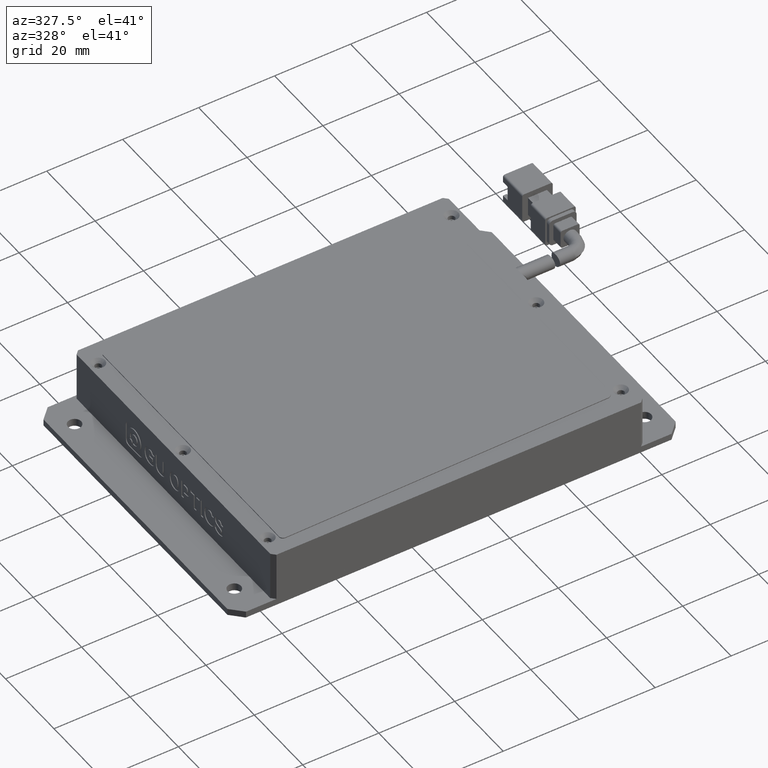
[diagram: clean part render]
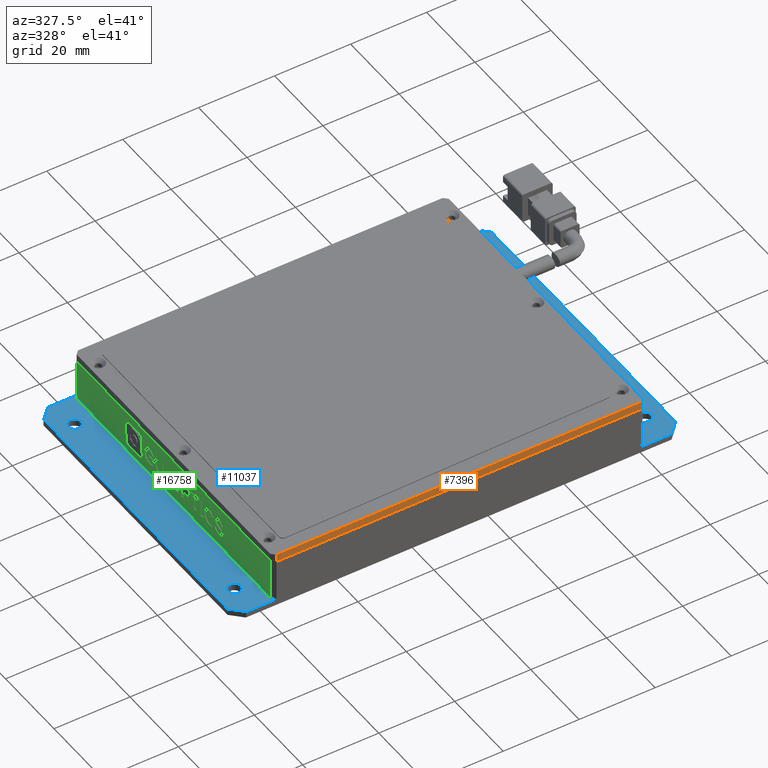
[diagram: same view with three faces highlighted in distinct colors, each labeled with its STEP entity id]
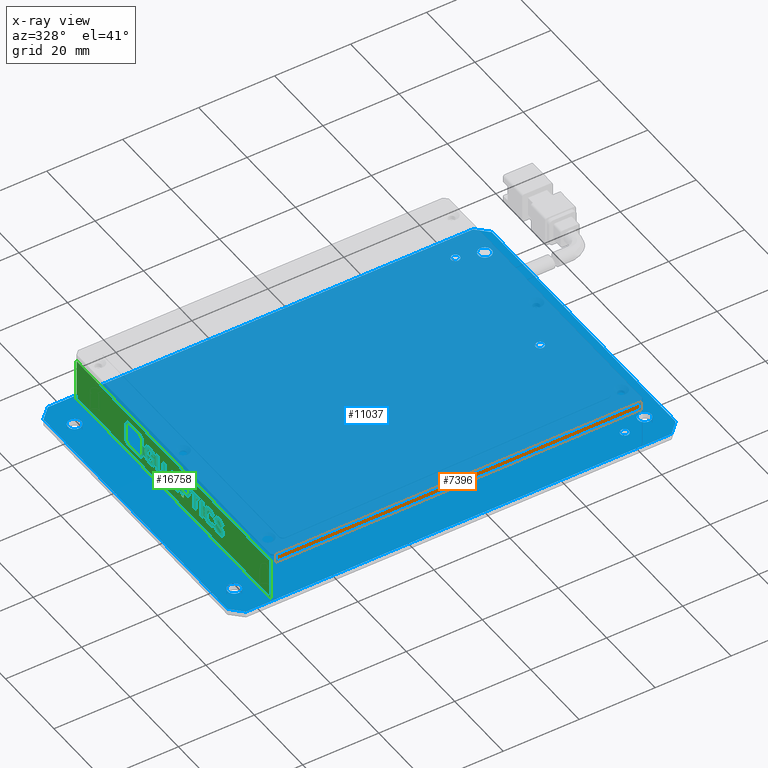
[diagram: x-ray of the same camera — body ghosted, the three highlighted faces saturated]
A machine part, auxiliary view with three faces highlighted in distinct colors.
The next image is the same camera in x-ray (body ghosted, the three faces saturated) — at least one of them is partly hidden behind the body in this view.
Their STEP definitions:

[orange] entity #7396 — the highlighted planar face has unit normal (0, 1, 0).
#40 = DIRECTION ( 'NONE',  ( 1.000000000000000000, 0.0000000000000000000, -0.0000000000000000000 ) ) ;
#74 = DIRECTION ( 'NONE',  ( 0.0000000000000000000, -0.0000000000000000000, 1.000000000000000000 ) ) ;
#658 = DIRECTION ( 'NONE',  ( -0.0000000000000000000, 0.0000000000000000000, -1.000000000000000000 ) ) ;
#698 = EDGE_CURVE ( 'NONE', #13604, #12568, #6428, .T. ) ;
#1328 = LINE ( 'NONE', #10414, #11222 ) ;
#1525 = CARTESIAN_POINT ( 'NONE',  ( -38.99847269950363000, -36.14700267277584100, 12.99999999999551300 ) ) ;
#1876 = ORIENTED_EDGE ( 'NONE', *, *, #5228, .F. ) ;
#1969 = DIRECTION ( 'NONE',  ( 0.0000000000000000000, -0.0000000000000000000, 1.000000000000000000 ) ) ;
#2539 = LINE ( 'NONE', #8420, #15800 ) ;
#2796 = CARTESIAN_POINT ( 'NONE',  ( -39.99847269950363700, -36.14700267277584100, 10.99999999999551300 ) ) ;
#3156 = ORIENTED_EDGE ( 'NONE', *, *, #16152, .F. ) ;
#4111 = LINE ( 'NONE', #2796, #7101 ) ;
#4158 = DIRECTION ( 'NONE',  ( -1.000000000000000000, 0.0000000000000000000, -0.0000000000000000000 ) ) ;
#4386 = ORIENTED_EDGE ( 'NONE', *, *, #698, .F. ) ;
#4492 = AXIS2_PLACEMENT_3D ( 'NONE', #15574, #7916, #74 ) ;
#4518 = EDGE_CURVE ( 'NONE', #10694, #13604, #1328, .T. ) ;
#5228 = EDGE_CURVE ( 'NONE', #11726, #10694, #2539, .T. ) ;
#5324 = PLANE ( 'NONE',  #4492 ) ;
#5377 = ORIENTED_EDGE ( 'NONE', *, *, #4518, .F. ) ;
#6163 = CARTESIAN_POINT ( 'NONE',  ( 57.00152730049634200, -36.14700267277584100, 12.99999999999551300 ) ) ;
#6428 = LINE ( 'NONE', #6163, #8435 ) ;
#7101 = VECTOR ( 'NONE', #4158, 1000.000000000000000 ) ;
#7396 = ADVANCED_FACE ( 'NONE', ( #9340 ), #5324, .F. ) ;
#7548 = CARTESIAN_POINT ( 'NONE',  ( 57.00152730049635600, -36.14700267277584800, 12.99999999999551300 ) ) ;
#7916 = DIRECTION ( 'NONE',  ( 0.0000000000000000000, 1.000000000000000000, 0.0000000000000000000 ) ) ;
#8420 = CARTESIAN_POINT ( 'NONE',  ( -38.99847269950363000, -36.14700267277584100, 12.99999999999551300 ) ) ;
#8435 = VECTOR ( 'NONE', #658, 1000.000000000000000 ) ;
#9340 = FACE_OUTER_BOUND ( 'NONE', #14551, .T. ) ;
#10414 = CARTESIAN_POINT ( 'NONE',  ( -39.99847269950363700, -36.14700267277584100, 12.99999999999551300 ) ) ;
#10694 = VERTEX_POINT ( 'NONE', #1525 ) ;
#11222 = VECTOR ( 'NONE', #40, 1000.000000000000000 ) ;
#11498 = CARTESIAN_POINT ( 'NONE',  ( -38.99847269950363700, -36.14700267277584100, 10.99999999999551300 ) ) ;
#11726 = VERTEX_POINT ( 'NONE', #11498 ) ;
#12568 = VERTEX_POINT ( 'NONE', #15915 ) ;
#13604 = VERTEX_POINT ( 'NONE', #7548 ) ;
#14551 = EDGE_LOOP ( 'NONE', ( #1876, #3156, #4386, #5377 ) ) ;
#15574 = CARTESIAN_POINT ( 'NONE',  ( -39.99847269950363700, -36.14700267277584100, 12.99999999999551300 ) ) ;
#15800 = VECTOR ( 'NONE', #1969, 1000.000000000000000 ) ;
#15915 = CARTESIAN_POINT ( 'NONE',  ( 57.00152730049637000, -36.14700267277584100, 10.99999999999551300 ) ) ;
#16152 = EDGE_CURVE ( 'NONE', #12568, #11726, #4111, .T. ) ;

[blue] entity #11037 — the highlighted planar face has unit normal (0, 0, 1).
#21 = DIRECTION ( 'NONE',  ( -1.000000000000000000, 0.0000000000000000000, 0.0000000000000000000 ) ) ;
#34 = EDGE_LOOP ( 'NONE', ( #14816, #4274 ) ) ;
#171 = DIRECTION ( 'NONE',  ( -1.000000000000000000, 0.0000000000000000000, 0.0000000000000000000 ) ) ;
#198 = CARTESIAN_POINT ( 'NONE',  ( -39.59847269950364500, 39.85299732722418800, -4.485127547138034700E-012 ) ) ;
#210 = VERTEX_POINT ( 'NONE', #7008 ) ;
#219 = EDGE_LOOP ( 'NONE', ( #5477, #5196 ) ) ;
#341 = CIRCLE ( 'NONE', #6382, 1.100000000000003600 ) ;
#399 = CARTESIAN_POINT ( 'NONE',  ( -38.49847269950364400, -30.14700267277580500, -4.485127547138034700E-012 ) ) ;
#442 = ORIENTED_EDGE ( 'NONE', *, *, #8157, .T. ) ;
#446 = VERTEX_POINT ( 'NONE', #1120 ) ;
#460 = VERTEX_POINT ( 'NONE', #3547 ) ;
#489 = CARTESIAN_POINT ( 'NONE',  ( -38.49847269950364400, -30.14700267277580500, -4.485127547138034700E-012 ) ) ;
#509 = EDGE_CURVE ( 'NONE', #10958, #1922, #9877, .T. ) ;
#678 = AXIS2_PLACEMENT_3D ( 'NONE', #16272, #8592, #819 ) ;
#683 = VERTEX_POINT ( 'NONE', #707 ) ;
#693 = CARTESIAN_POINT ( 'NONE',  ( -46.99847269950360800, 45.85299732722419500, -4.485127547138034700E-012 ) ) ;
#707 = CARTESIAN_POINT ( 'NONE',  ( 65.00152730049634900, -36.14700267277581200, -4.485127547138034700E-012 ) ) ;
#734 = LINE ( 'NONE', #10435, #1001 ) ;
#808 = EDGE_CURVE ( 'NONE', #7053, #16188, #5429, .T. ) ;
#819 = DIRECTION ( 'NONE',  ( -1.000000000000000000, 0.0000000000000000000, 0.0000000000000000000 ) ) ;
#850 = ORIENTED_EDGE ( 'NONE', *, *, #4254, .T. ) ;
#1001 = VECTOR ( 'NONE', #10469, 999.9999999999998900 ) ;
#1098 = VERTEX_POINT ( 'NONE', #11511 ) ;
#1103 = DIRECTION ( 'NONE',  ( 0.0000000000000000000, 0.0000000000000000000, -1.000000000000000000 ) ) ;
#1120 = CARTESIAN_POINT ( 'NONE',  ( 55.40152730049635500, 39.85299732722418800, -4.485127547138034700E-012 ) ) ;
#1122 = CARTESIAN_POINT ( 'NONE',  ( 56.50152730049636300, -30.14700267277581200, -4.485127547138034700E-012 ) ) ;
#1283 = EDGE_LOOP ( 'NONE', ( #15716, #13333 ) ) ;
#1553 = DIRECTION ( 'NONE',  ( -1.000000000000000000, 0.0000000000000000000, 0.0000000000000000000 ) ) ;
#1595 = CIRCLE ( 'NONE', #2119, 1.750000000000001600 ) ;
#1602 = EDGE_CURVE ( 'NONE', #9334, #11592, #11855, .T. ) ;
#1655 = CARTESIAN_POINT ( 'NONE',  ( 63.00152730049636300, -28.14700267277580500, -4.483392823662057900E-012 ) ) ;
#1799 = CARTESIAN_POINT ( 'NONE',  ( -43.24847269950363000, 37.85299732722420200, -4.483392823662057900E-012 ) ) ;
#1806 = EDGE_CURVE ( 'NONE', #8937, #6772, #5488, .T. ) ;
#1867 = FACE_BOUND ( 'NONE', #16430, .T. ) ;
#1922 = VERTEX_POINT ( 'NONE', #8210 ) ;
#2033 = DIRECTION ( 'NONE',  ( 0.0000000000000000000, 0.0000000000000000000, -1.000000000000000000 ) ) ;
#2058 = EDGE_CURVE ( 'NONE', #1922, #10958, #15439, .T. ) ;
#2119 = AXIS2_PLACEMENT_3D ( 'NONE', #14654, #7009, #15961 ) ;
#2279 = FACE_BOUND ( 'NONE', #1283, .T. ) ;
#2458 = DIRECTION ( 'NONE',  ( -1.000000000000000000, 0.0000000000000000000, 0.0000000000000000000 ) ) ;
#2535 = VERTEX_POINT ( 'NONE', #16118 ) ;
#2538 = VECTOR ( 'NONE', #12054, 1000.000000000000000 ) ;
#2609 = ORIENTED_EDGE ( 'NONE', *, *, #13025, .T. ) ;
#2701 = EDGE_CURVE ( 'NONE', #16188, #7053, #4659, .T. ) ;
#2712 = FACE_OUTER_BOUND ( 'NONE', #15775, .T. ) ;
#2871 = LINE ( 'NONE', #7177, #6311 ) ;
#2909 = DIRECTION ( 'NONE',  ( 1.000000000000000000, -5.551115123125781500E-017, 0.0000000000000000000 ) ) ;
#2930 = ORIENTED_EDGE ( 'NONE', *, *, #808, .T. ) ;
#3013 = DIRECTION ( 'NONE',  ( -1.000000000000000000, 0.0000000000000000000, 0.0000000000000000000 ) ) ;
#3014 = EDGE_LOOP ( 'NONE', ( #14456, #850 ) ) ;
#3054 = EDGE_CURVE ( 'NONE', #13195, #11186, #734, .T. ) ;
#3058 = ORIENTED_EDGE ( 'NONE', *, *, #13985, .T. ) ;
#3079 = EDGE_CURVE ( 'NONE', #16773, #6806, #4557, .T. ) ;
#3090 = AXIS2_PLACEMENT_3D ( 'NONE', #399, #7596, #3717 ) ;
#3126 = CARTESIAN_POINT ( 'NONE',  ( 63.00152730049636300, 37.85299732722420200, -4.483392823662057900E-012 ) ) ;
#3490 = CARTESIAN_POINT ( 'NONE',  ( -43.24847269950363000, -28.14700267277579800, -4.483392823662057900E-012 ) ) ;
#3500 = CIRCLE ( 'NONE', #14377, 1.750000000000001600 ) ;
#3547 = CARTESIAN_POINT ( 'NONE',  ( 55.40152730049635500, 4.852997327224190200, -4.485127547138034700E-012 ) ) ;
#3650 = EDGE_CURVE ( 'NONE', #210, #10809, #10456, .T. ) ;
#3717 = DIRECTION ( 'NONE',  ( -1.000000000000000000, 0.0000000000000000000, 0.0000000000000000000 ) ) ;
#3896 = LINE ( 'NONE', #5804, #6881 ) ;
#3981 = VECTOR ( 'NONE', #8432, 1000.000000000000000 ) ;
#4024 = VERTEX_POINT ( 'NONE', #11153 ) ;
#4098 = VERTEX_POINT ( 'NONE', #8263 ) ;
#4251 = DIRECTION ( 'NONE',  ( -1.000000000000000000, 0.0000000000000000000, 0.0000000000000000000 ) ) ;
#4254 = EDGE_CURVE ( 'NONE', #1098, #460, #9425, .T. ) ;
#4274 = ORIENTED_EDGE ( 'NONE', *, *, #1806, .T. ) ;
#4334 = DIRECTION ( 'NONE',  ( 0.0000000000000000000, 0.0000000000000000000, -1.000000000000000000 ) ) ;
#4341 = AXIS2_PLACEMENT_3D ( 'NONE', #4645, #13523, #5903 ) ;
#4375 = CARTESIAN_POINT ( 'NONE',  ( 56.50152730049636300, 4.852997327224190200, -4.485127547138034700E-012 ) ) ;
#4453 = DIRECTION ( 'NONE',  ( -1.000000000000000000, 0.0000000000000000000, 0.0000000000000000000 ) ) ;
#4557 = CIRCLE ( 'NONE', #8041, 1.750000000000001600 ) ;
#4568 = VERTEX_POINT ( 'NONE', #9204 ) ;
#4570 = DIRECTION ( 'NONE',  ( -1.000000000000000000, 5.551115123125781500E-017, -0.0000000000000000000 ) ) ;
#4645 = CARTESIAN_POINT ( 'NONE',  ( 68.00152730049634900, 45.85299732722419500, -4.485127547138034700E-012 ) ) ;
#4659 = CIRCLE ( 'NONE', #8668, 1.100000000000003600 ) ;
#4812 = AXIS2_PLACEMENT_3D ( 'NONE', #1122, #10142, #2458 ) ;
#4850 = DIRECTION ( 'NONE',  ( 0.0000000000000000000, 0.0000000000000000000, -1.000000000000000000 ) ) ;
#4865 = CIRCLE ( 'NONE', #10959, 1.100000000000003600 ) ;
#4931 = CARTESIAN_POINT ( 'NONE',  ( -37.39847269950363500, 39.85299732722418800, -4.485127547138034700E-012 ) ) ;
#4999 = FACE_BOUND ( 'NONE', #11557, .T. ) ;
#5034 = ORIENTED_EDGE ( 'NONE', *, *, #1602, .T. ) ;
#5196 = ORIENTED_EDGE ( 'NONE', *, *, #2058, .T. ) ;
#5233 = AXIS2_PLACEMENT_3D ( 'NONE', #15510, #7858, #21 ) ;
#5335 = CARTESIAN_POINT ( 'NONE',  ( -46.74847269950363700, -28.14700267277579800, -4.483392823662057900E-012 ) ) ;
#5380 = FACE_BOUND ( 'NONE', #3014, .T. ) ;
#5392 = VERTEX_POINT ( 'NONE', #8795 ) ;
#5398 = AXIS2_PLACEMENT_3D ( 'NONE', #10171, #10207, #10091 ) ;
#5429 = CIRCLE ( 'NONE', #16141, 1.100000000000003600 ) ;
#5477 = ORIENTED_EDGE ( 'NONE', *, *, #509, .T. ) ;
#5488 = CIRCLE ( 'NONE', #8024, 1.100000000000003600 ) ;
#5804 = CARTESIAN_POINT ( 'NONE',  ( 65.00152730049634900, -36.14700267277581200, -4.485127547138034700E-012 ) ) ;
#5869 = ORIENTED_EDGE ( 'NONE', *, *, #14410, .T. ) ;
#5903 = DIRECTION ( 'NONE',  ( 1.000000000000000000, -5.551115123125781500E-017, 0.0000000000000000000 ) ) ;
#5937 = CARTESIAN_POINT ( 'NONE',  ( -38.49847269950364400, 4.852997327224197300, -4.485127547138034700E-012 ) ) ;
#6065 = EDGE_CURVE ( 'NONE', #6772, #8937, #11727, .T. ) ;
#6138 = CIRCLE ( 'NONE', #9113, 1.749999999999994700 ) ;
#6206 = VERTEX_POINT ( 'NONE', #6670 ) ;
#6235 = ORIENTED_EDGE ( 'NONE', *, *, #8521, .T. ) ;
#6293 = ORIENTED_EDGE ( 'NONE', *, *, #11487, .T. ) ;
#6311 = VECTOR ( 'NONE', #4570, 1000.000000000000000 ) ;
#6382 = AXIS2_PLACEMENT_3D ( 'NONE', #7420, #16382, #8694 ) ;
#6399 = LINE ( 'NONE', #8202, #2538 ) ;
#6410 = EDGE_CURVE ( 'NONE', #10401, #4098, #4865, .T. ) ;
#6427 = AXIS2_PLACEMENT_3D ( 'NONE', #4375, #4334, #4251 ) ;
#6585 = CARTESIAN_POINT ( 'NONE',  ( 68.00152730049634900, -33.14700267277579800, -4.485127547138034700E-012 ) ) ;
#6637 = EDGE_CURVE ( 'NONE', #460, #1098, #10350, .T. ) ;
#6670 = CARTESIAN_POINT ( 'NONE',  ( 61.25152730049637000, 37.85299732722420200, -4.483392823662057900E-012 ) ) ;
#6701 = EDGE_CURVE ( 'NONE', #4568, #683, #13959, .T. ) ;
#6772 = VERTEX_POINT ( 'NONE', #11982 ) ;
#6775 = ORIENTED_EDGE ( 'NONE', *, *, #6701, .T. ) ;
#6806 = VERTEX_POINT ( 'NONE', #1799 ) ;
#6881 = VECTOR ( 'NONE', #14725, 1000.000000000000000 ) ;
#6996 = CARTESIAN_POINT ( 'NONE',  ( 64.75152730049634900, -28.14700267277580500, -4.483392823662057900E-012 ) ) ;
#7008 = CARTESIAN_POINT ( 'NONE',  ( 61.25152730049637000, -28.14700267277580500, -4.483392823662057900E-012 ) ) ;
#7009 = DIRECTION ( 'NONE',  ( 0.0000000000000000000, 0.0000000000000000000, -1.000000000000000000 ) ) ;
#7053 = VERTEX_POINT ( 'NONE', #4931 ) ;
#7119 = DIRECTION ( 'NONE',  ( 0.7071067811865491300, -0.7071067811865459100, -0.0000000000000000000 ) ) ;
#7132 = PLANE ( 'NONE',  #4341 ) ;
#7135 = EDGE_CURVE ( 'NONE', #14645, #2535, #14128, .T. ) ;
#7166 = EDGE_CURVE ( 'NONE', #446, #9517, #13741, .T. ) ;
#7177 = CARTESIAN_POINT ( 'NONE',  ( 68.00152730049634900, 45.85299732722419500, -4.485127547138034700E-012 ) ) ;
#7216 = DIRECTION ( 'NONE',  ( -1.000000000000000000, 0.0000000000000000000, 0.0000000000000000000 ) ) ;
#7400 = ORIENTED_EDGE ( 'NONE', *, *, #7135, .T. ) ;
#7420 = CARTESIAN_POINT ( 'NONE',  ( 56.50152730049636300, 39.85299732722418800, -4.485127547138034700E-012 ) ) ;
#7596 = DIRECTION ( 'NONE',  ( 0.0000000000000000000, 0.0000000000000000000, -1.000000000000000000 ) ) ;
#7858 = DIRECTION ( 'NONE',  ( 0.0000000000000000000, 0.0000000000000000000, -1.000000000000000000 ) ) ;
#8009 = DIRECTION ( 'NONE',  ( 0.0000000000000000000, 0.0000000000000000000, -1.000000000000000000 ) ) ;
#8024 = AXIS2_PLACEMENT_3D ( 'NONE', #13560, #13500, #13435 ) ;
#8041 = AXIS2_PLACEMENT_3D ( 'NONE', #9658, #9595, #9536 ) ;
#8157 = EDGE_CURVE ( 'NONE', #11186, #14645, #2871, .T. ) ;
#8202 = CARTESIAN_POINT ( 'NONE',  ( -49.99847269950365100, 45.85299732722419500, -4.485127547138034700E-012 ) ) ;
#8210 = CARTESIAN_POINT ( 'NONE',  ( -37.39847269950363500, -30.14700267277580500, -4.485127547138034700E-012 ) ) ;
#8263 = CARTESIAN_POINT ( 'NONE',  ( -37.39847269950363500, 4.852997327224197300, -4.485127547138034700E-012 ) ) ;
#8341 = ORIENTED_EDGE ( 'NONE', *, *, #3054, .T. ) ;
#8348 = FACE_BOUND ( 'NONE', #10779, .T. ) ;
#8432 = DIRECTION ( 'NONE',  ( -0.7071067811865491300, -0.7071067811865459100, 0.0000000000000000000 ) ) ;
#8521 = EDGE_CURVE ( 'NONE', #6806, #16773, #1595, .T. ) ;
#8592 = DIRECTION ( 'NONE',  ( 0.0000000000000000000, 0.0000000000000000000, -1.000000000000000000 ) ) ;
#8668 = AXIS2_PLACEMENT_3D ( 'NONE', #16757, #16740, #16730 ) ;
#8694 = DIRECTION ( 'NONE',  ( -1.000000000000000000, 0.0000000000000000000, 0.0000000000000000000 ) ) ;
#8743 = FACE_BOUND ( 'NONE', #34, .T. ) ;
#8787 = CARTESIAN_POINT ( 'NONE',  ( -46.99847269950363700, 45.85299732722418000, -4.485127547138034700E-012 ) ) ;
#8795 = CARTESIAN_POINT ( 'NONE',  ( -49.99847269950363700, -33.14700267277580500, -4.485127547138034700E-012 ) ) ;
#8937 = VERTEX_POINT ( 'NONE', #11958 ) ;
#9113 = AXIS2_PLACEMENT_3D ( 'NONE', #1655, #10643, #3013 ) ;
#9204 = CARTESIAN_POINT ( 'NONE',  ( -46.99847269950363700, -36.14700267277580500, -4.485127547138034700E-012 ) ) ;
#9334 = VERTEX_POINT ( 'NONE', #5335 ) ;
#9397 = ORIENTED_EDGE ( 'NONE', *, *, #12095, .T. ) ;
#9425 = CIRCLE ( 'NONE', #6427, 1.100000000000003600 ) ;
#9517 = VERTEX_POINT ( 'NONE', #14509 ) ;
#9536 = DIRECTION ( 'NONE',  ( -1.000000000000000000, 0.0000000000000000000, 0.0000000000000000000 ) ) ;
#9595 = DIRECTION ( 'NONE',  ( 0.0000000000000000000, 0.0000000000000000000, -1.000000000000000000 ) ) ;
#9650 = AXIS2_PLACEMENT_3D ( 'NONE', #5937, #14870, #7216 ) ;
#9658 = CARTESIAN_POINT ( 'NONE',  ( -44.99847269950363700, 37.85299732722420200, -4.483392823662057900E-012 ) ) ;
#9707 = CARTESIAN_POINT ( 'NONE',  ( -39.59847269950364500, 4.852997327224197300, -4.485127547138034700E-012 ) ) ;
#9737 = CARTESIAN_POINT ( 'NONE',  ( -44.99847269950363700, -28.14700267277579800, -4.483392823662057900E-012 ) ) ;
#9835 = LINE ( 'NONE', #10441, #16682 ) ;
#9877 = CIRCLE ( 'NONE', #10410, 1.100000000000003600 ) ;
#9882 = CARTESIAN_POINT ( 'NONE',  ( -38.49847269950364400, 39.85299732722418800, -4.485127547138034700E-012 ) ) ;
#10005 = DIRECTION ( 'NONE',  ( 0.0000000000000000000, 0.0000000000000000000, -1.000000000000000000 ) ) ;
#10053 = DIRECTION ( 'NONE',  ( -1.000000000000000000, 0.0000000000000000000, 0.0000000000000000000 ) ) ;
#10091 = DIRECTION ( 'NONE',  ( -1.000000000000000000, 0.0000000000000000000, 0.0000000000000000000 ) ) ;
#10118 = ORIENTED_EDGE ( 'NONE', *, *, #12469, .T. ) ;
#10142 = DIRECTION ( 'NONE',  ( 0.0000000000000000000, 0.0000000000000000000, -1.000000000000000000 ) ) ;
#10171 = CARTESIAN_POINT ( 'NONE',  ( 63.00152730049636300, -28.14700267277580500, -4.483392823662057900E-012 ) ) ;
#10207 = DIRECTION ( 'NONE',  ( 0.0000000000000000000, 0.0000000000000000000, -1.000000000000000000 ) ) ;
#10350 = CIRCLE ( 'NONE', #5233, 1.100000000000003600 ) ;
#10383 = DIRECTION ( 'NONE',  ( 5.551115123125781500E-017, 1.000000000000000000, 0.0000000000000000000 ) ) ;
#10401 = VERTEX_POINT ( 'NONE', #9707 ) ;
#10410 = AXIS2_PLACEMENT_3D ( 'NONE', #489, #1103, #1553 ) ;
#10435 = CARTESIAN_POINT ( 'NONE',  ( 68.00152730049636300, 42.85299732722417300, -4.485127547138034700E-012 ) ) ;
#10441 = CARTESIAN_POINT ( 'NONE',  ( 68.00152730049634900, 45.85299732722419500, -4.485127547138034700E-012 ) ) ;
#10456 = CIRCLE ( 'NONE', #5398, 1.749999999999994700 ) ;
#10469 = DIRECTION ( 'NONE',  ( -0.7071067811865468000, 0.7071067811865483500, 0.0000000000000000000 ) ) ;
#10519 = ORIENTED_EDGE ( 'NONE', *, *, #3650, .T. ) ;
#10544 = VECTOR ( 'NONE', #2909, 1000.000000000000000 ) ;
#10554 = CARTESIAN_POINT ( 'NONE',  ( 68.00152730049634900, -36.14700267277581200, -4.485127547138034700E-012 ) ) ;
#10643 = DIRECTION ( 'NONE',  ( 0.0000000000000000000, 0.0000000000000000000, -1.000000000000000000 ) ) ;
#10778 = CARTESIAN_POINT ( 'NONE',  ( -39.59847269950364500, -30.14700267277580500, -4.485127547138034700E-012 ) ) ;
#10779 = EDGE_LOOP ( 'NONE', ( #10519, #12965 ) ) ;
#10809 = VERTEX_POINT ( 'NONE', #6996 ) ;
#10878 = AXIS2_PLACEMENT_3D ( 'NONE', #12132, #11897, #11830 ) ;
#10958 = VERTEX_POINT ( 'NONE', #10778 ) ;
#10959 = AXIS2_PLACEMENT_3D ( 'NONE', #12434, #4850, #13721 ) ;
#11037 = ADVANCED_FACE ( 'NONE', ( #2712, #15550, #2279, #12143, #8743, #5380, #1867, #15150, #11728, #8348, #4999 ), #7132, .T. ) ;
#11044 = DIRECTION ( 'NONE',  ( -1.000000000000000000, 0.0000000000000000000, 0.0000000000000000000 ) ) ;
#11131 = ORIENTED_EDGE ( 'NONE', *, *, #2701, .T. ) ;
#11153 = CARTESIAN_POINT ( 'NONE',  ( 64.75152730049634900, 37.85299732722420200, -4.483392823662057900E-012 ) ) ;
#11186 = VERTEX_POINT ( 'NONE', #12513 ) ;
#11487 = EDGE_CURVE ( 'NONE', #5392, #4568, #12892, .T. ) ;
#11497 = ORIENTED_EDGE ( 'NONE', *, *, #14834, .T. ) ;
#11511 = CARTESIAN_POINT ( 'NONE',  ( 57.60152730049636500, 4.852997327224190200, -4.485127547138034700E-012 ) ) ;
#11557 = EDGE_LOOP ( 'NONE', ( #2609, #11497 ) ) ;
#11592 = VERTEX_POINT ( 'NONE', #3490 ) ;
#11727 = CIRCLE ( 'NONE', #4812, 1.100000000000003600 ) ;
#11728 = FACE_BOUND ( 'NONE', #12555, .T. ) ;
#11830 = DIRECTION ( 'NONE',  ( -1.000000000000000000, 0.0000000000000000000, 0.0000000000000000000 ) ) ;
#11855 = CIRCLE ( 'NONE', #10878, 1.750000000000001600 ) ;
#11897 = DIRECTION ( 'NONE',  ( 0.0000000000000000000, 0.0000000000000000000, -1.000000000000000000 ) ) ;
#11958 = CARTESIAN_POINT ( 'NONE',  ( 57.60152730049636500, -30.14700267277581200, -4.485127547138034700E-012 ) ) ;
#11982 = CARTESIAN_POINT ( 'NONE',  ( 55.40152730049635500, -30.14700267277581200, -4.485127547138034700E-012 ) ) ;
#12054 = DIRECTION ( 'NONE',  ( -5.551115123125781500E-017, -1.000000000000000000, -0.0000000000000000000 ) ) ;
#12069 = DIRECTION ( 'NONE',  ( 0.0000000000000000000, 0.0000000000000000000, -1.000000000000000000 ) ) ;
#12095 = EDGE_CURVE ( 'NONE', #11592, #9334, #3500, .T. ) ;
#12132 = CARTESIAN_POINT ( 'NONE',  ( -44.99847269950363700, -28.14700267277579800, -4.483392823662057900E-012 ) ) ;
#12143 = FACE_BOUND ( 'NONE', #14833, .T. ) ;
#12434 = CARTESIAN_POINT ( 'NONE',  ( -38.49847269950364400, 4.852997327224197300, -4.485127547138034700E-012 ) ) ;
#12469 = EDGE_CURVE ( 'NONE', #14775, #13195, #9835, .T. ) ;
#12513 = CARTESIAN_POINT ( 'NONE',  ( 65.00152730049634900, 45.85299732722419500, -4.485127547138034700E-012 ) ) ;
#12555 = EDGE_LOOP ( 'NONE', ( #16399, #6235 ) ) ;
#12892 = LINE ( 'NONE', #14759, #16339 ) ;
#12965 = ORIENTED_EDGE ( 'NONE', *, *, #12975, .T. ) ;
#12975 = EDGE_CURVE ( 'NONE', #10809, #210, #6138, .T. ) ;
#13025 = EDGE_CURVE ( 'NONE', #6206, #4024, #14315, .T. ) ;
#13120 = EDGE_CURVE ( 'NONE', #4098, #10401, #14522, .T. ) ;
#13195 = VERTEX_POINT ( 'NONE', #13731 ) ;
#13198 = CIRCLE ( 'NONE', #13554, 1.749999999999994700 ) ;
#13333 = ORIENTED_EDGE ( 'NONE', *, *, #13120, .T. ) ;
#13435 = DIRECTION ( 'NONE',  ( -1.000000000000000000, 0.0000000000000000000, 0.0000000000000000000 ) ) ;
#13467 = CARTESIAN_POINT ( 'NONE',  ( -46.74847269950363700, 37.85299732722420200, -4.483392823662057900E-012 ) ) ;
#13500 = DIRECTION ( 'NONE',  ( 0.0000000000000000000, 0.0000000000000000000, -1.000000000000000000 ) ) ;
#13523 = DIRECTION ( 'NONE',  ( 0.0000000000000000000, 0.0000000000000000000, 1.000000000000000000 ) ) ;
#13554 = AXIS2_PLACEMENT_3D ( 'NONE', #15656, #8009, #171 ) ;
#13560 = CARTESIAN_POINT ( 'NONE',  ( 56.50152730049636300, -30.14700267277581200, -4.485127547138034700E-012 ) ) ;
#13721 = DIRECTION ( 'NONE',  ( -1.000000000000000000, 0.0000000000000000000, 0.0000000000000000000 ) ) ;
#13731 = CARTESIAN_POINT ( 'NONE',  ( 68.00152730049634900, 42.85299732722418800, -4.485127547138034700E-012 ) ) ;
#13741 = CIRCLE ( 'NONE', #678, 1.100000000000003600 ) ;
#13959 = LINE ( 'NONE', #10554, #10544 ) ;
#13985 = EDGE_CURVE ( 'NONE', #9517, #446, #341, .T. ) ;
#14128 = LINE ( 'NONE', #693, #3981 ) ;
#14163 = EDGE_LOOP ( 'NONE', ( #5034, #9397 ) ) ;
#14315 = CIRCLE ( 'NONE', #15135, 1.749999999999994700 ) ;
#14377 = AXIS2_PLACEMENT_3D ( 'NONE', #9737, #2033, #11044 ) ;
#14410 = EDGE_CURVE ( 'NONE', #683, #14775, #3896, .T. ) ;
#14456 = ORIENTED_EDGE ( 'NONE', *, *, #6637, .T. ) ;
#14468 = ORIENTED_EDGE ( 'NONE', *, *, #15454, .T. ) ;
#14509 = CARTESIAN_POINT ( 'NONE',  ( 57.60152730049636500, 39.85299732722418800, -4.485127547138034700E-012 ) ) ;
#14522 = CIRCLE ( 'NONE', #9650, 1.100000000000003600 ) ;
#14645 = VERTEX_POINT ( 'NONE', #8787 ) ;
#14654 = CARTESIAN_POINT ( 'NONE',  ( -44.99847269950363700, 37.85299732722420200, -4.483392823662057900E-012 ) ) ;
#14725 = DIRECTION ( 'NONE',  ( 0.7071067811865459100, 0.7071067811865491300, 0.0000000000000000000 ) ) ;
#14759 = CARTESIAN_POINT ( 'NONE',  ( -49.99847269950365100, -33.14700267277579100, -4.485127547138034700E-012 ) ) ;
#14775 = VERTEX_POINT ( 'NONE', #6585 ) ;
#14816 = ORIENTED_EDGE ( 'NONE', *, *, #6065, .T. ) ;
#14834 = EDGE_CURVE ( 'NONE', #4024, #6206, #13198, .T. ) ;
#14833 = EDGE_LOOP ( 'NONE', ( #11131, #2930 ) ) ;
#14870 = DIRECTION ( 'NONE',  ( 0.0000000000000000000, 0.0000000000000000000, -1.000000000000000000 ) ) ;
#15135 = AXIS2_PLACEMENT_3D ( 'NONE', #3126, #12069, #4453 ) ;
#15150 = FACE_BOUND ( 'NONE', #14163, .T. ) ;
#15439 = CIRCLE ( 'NONE', #3090, 1.100000000000003600 ) ;
#15454 = EDGE_CURVE ( 'NONE', #2535, #5392, #6399, .T. ) ;
#15510 = CARTESIAN_POINT ( 'NONE',  ( 56.50152730049636300, 4.852997327224190200, -4.485127547138034700E-012 ) ) ;
#15550 = FACE_BOUND ( 'NONE', #219, .T. ) ;
#15656 = CARTESIAN_POINT ( 'NONE',  ( 63.00152730049636300, 37.85299732722420200, -4.483392823662057900E-012 ) ) ;
#15716 = ORIENTED_EDGE ( 'NONE', *, *, #6410, .T. ) ;
#15775 = EDGE_LOOP ( 'NONE', ( #10118, #8341, #442, #7400, #14468, #6293, #6775, #5869 ) ) ;
#15961 = DIRECTION ( 'NONE',  ( -1.000000000000000000, 0.0000000000000000000, 0.0000000000000000000 ) ) ;
#16118 = CARTESIAN_POINT ( 'NONE',  ( -49.99847269950363700, 42.85299732722414500, -4.485127547138034700E-012 ) ) ;
#16141 = AXIS2_PLACEMENT_3D ( 'NONE', #9882, #10005, #10053 ) ;
#16188 = VERTEX_POINT ( 'NONE', #198 ) ;
#16272 = CARTESIAN_POINT ( 'NONE',  ( 56.50152730049636300, 39.85299732722418800, -4.485127547138034700E-012 ) ) ;
#16339 = VECTOR ( 'NONE', #7119, 1000.000000000000100 ) ;
#16382 = DIRECTION ( 'NONE',  ( 0.0000000000000000000, 0.0000000000000000000, -1.000000000000000000 ) ) ;
#16399 = ORIENTED_EDGE ( 'NONE', *, *, #3079, .T. ) ;
#16430 = EDGE_LOOP ( 'NONE', ( #16685, #3058 ) ) ;
#16682 = VECTOR ( 'NONE', #10383, 1000.000000000000000 ) ;
#16685 = ORIENTED_EDGE ( 'NONE', *, *, #7166, .T. ) ;
#16730 = DIRECTION ( 'NONE',  ( -1.000000000000000000, 0.0000000000000000000, 0.0000000000000000000 ) ) ;
#16740 = DIRECTION ( 'NONE',  ( 0.0000000000000000000, 0.0000000000000000000, -1.000000000000000000 ) ) ;
#16757 = CARTESIAN_POINT ( 'NONE',  ( -38.49847269950364400, 39.85299732722418800, -4.485127547138034700E-012 ) ) ;
#16773 = VERTEX_POINT ( 'NONE', #13467 ) ;

[green] entity #16758 — the highlighted planar face has unit normal (1, 0, 0).
#12 = CARTESIAN_POINT ( 'NONE',  ( -39.99847269950363700, 17.81290584924070700, 7.503437824320193400 ) ) ;
#23 = VECTOR ( 'NONE', #930, 1000.000000000000100 ) ;
#35 = CARTESIAN_POINT ( 'NONE',  ( -39.99847269950363700, -1.765882778350796900, 6.225124805789441500 ) ) ;
#38 = EDGE_CURVE ( 'NONE', #11393, #11246, #4266, .T. ) ;
#42 = CARTESIAN_POINT ( 'NONE',  ( -39.99847269950363700, 14.64732959514205400, 7.621774975786671300 ) ) ;
#53 = ORIENTED_EDGE ( 'NONE', *, *, #11871, .F. ) ;
#62 = CARTESIAN_POINT ( 'NONE',  ( -39.99847269950363700, -14.83995327363116200, 4.850498863424071800 ) ) ;
#73 = DIRECTION ( 'NONE',  ( 0.0000000000000000000, 0.0000000000000000000, -1.000000000000000000 ) ) ;
#99 = CARTESIAN_POINT ( 'NONE',  ( -39.99847269950363700, 15.78072188314567200, 5.289377680532581400 ) ) ;
#105 = VERTEX_POINT ( 'NONE', #12803 ) ;
#124 = B_SPLINE_CURVE_WITH_KNOTS ( 'NONE', 3,
 ( #6720, #14342, #9246, #1513 ),
 .UNSPECIFIED., .F., .F.,
 ( 4, 4 ),
 ( 0.0000000000000000000, 3.482843224148870000 ),
 .UNSPECIFIED. ) ;
#155 = CARTESIAN_POINT ( 'NONE',  ( -39.99847269950363700, -5.917962461249405900, 7.095577535847239900 ) ) ;
#161 = CARTESIAN_POINT ( 'NONE',  ( -39.99847269950363700, -12.28858359111442100, 4.027838059971209400 ) ) ;
#169 = VERTEX_POINT ( 'NONE', #15728 ) ;
#184 = EDGE_CURVE ( 'NONE', #14896, #14835, #194, .T. ) ;
#194 = B_SPLINE_CURVE_WITH_KNOTS ( 'NONE', 3,
 ( #6545, #15569, #16291, #16492 ),
 .UNSPECIFIED., .F., .F.,
 ( 4, 4 ),
 ( 17.96388127711772100, 20.20936643675743100 ),
 .UNSPECIFIED. ) ;
#200 = ORIENTED_EDGE ( 'NONE', *, *, #10416, .F. ) ;
#217 = CARTESIAN_POINT ( 'NONE',  ( -39.99847269950363700, -6.459663353166465800, 7.727838212428558500 ) ) ;
#220 = ORIENTED_EDGE ( 'NONE', *, *, #2937, .F. ) ;
#233 = ORIENTED_EDGE ( 'NONE', *, *, #914, .F. ) ;
#240 = CARTESIAN_POINT ( 'NONE',  ( -39.99847269950363700, 16.71809567349416200, 5.302809592524666500 ) ) ;
#281 = CARTESIAN_POINT ( 'NONE',  ( -39.99847269950363700, -11.72305998936476500, 3.939590261897747900 ) ) ;
#331 = EDGE_CURVE ( 'NONE', #11010, #10121, #3046, .T. ) ;
#351 = VERTEX_POINT ( 'NONE', #8443 ) ;
#377 = ORIENTED_EDGE ( 'NONE', *, *, #4622, .F. ) ;
#396 = CARTESIAN_POINT ( 'NONE',  ( -39.99847269950363700, 12.95988894662448800, 3.323508624112548200 ) ) ;
#428 = ORIENTED_EDGE ( 'NONE', *, *, #8136, .F. ) ;
#438 = DIRECTION ( 'NONE',  ( -0.0000000000000000000, -0.9999680015359181400, 0.007999744012291240500 ) ) ;
#479 = B_SPLINE_CURVE_WITH_KNOTS ( 'NONE', 3,
 ( #99, #7940, #10468, #2815 ),
 .UNSPECIFIED., .F., .F.,
 ( 4, 4 ),
 ( 3.741249359364779100, 5.611874039047168400 ),
 .UNSPECIFIED. ) ;
#481 = CARTESIAN_POINT ( 'NONE',  ( -39.99847269950363700, 5.551248139402071400, 3.131606922791931400 ) ) ;
#492 = LINE ( 'NONE', #8651, #10405 ) ;
#561 = B_SPLINE_CURVE_WITH_KNOTS ( 'NONE', 3,
 ( #5274, #14155, #6557, #15455 ),
 .UNSPECIFIED., .F., .F.,
 ( 4, 4 ),
 ( 6.965686448297741000, 10.44852967244660900 ),
 .UNSPECIFIED. ) ;
#567 = EDGE_CURVE ( 'NONE', #12257, #12162, #1334, .T. ) ;
#587 = CARTESIAN_POINT ( 'NONE',  ( -39.99847269950363700, -14.76858589807548900, 6.454731844636433500 ) ) ;
#619 = ORIENTED_EDGE ( 'NONE', *, *, #5012, .F. ) ;
#675 = EDGE_CURVE ( 'NONE', #12829, #12712, #6369, .T. ) ;
#696 = ORIENTED_EDGE ( 'NONE', *, *, #11061, .F. ) ;
#712 = CARTESIAN_POINT ( 'NONE',  ( -39.99847269950363700, 13.71904410239861800, 6.310554413892099000 ) ) ;
#718 = CARTESIAN_POINT ( 'NONE',  ( -39.99847269950363700, 24.48328480752584500, 2.378284504723573900 ) ) ;
#829 = CARTESIAN_POINT ( 'NONE',  ( -39.99847269950363700, -2.208319134405178000, 7.065900389232489900 ) ) ;
#844 = B_SPLINE_CURVE_WITH_KNOTS ( 'NONE', 3,
 ( #2349, #3619, #5036, #13902 ),
 .UNSPECIFIED., .F., .F.,
 ( 4, 4 ),
 ( 21.68361964961845000, 23.35159039189679900 ),
 .UNSPECIFIED. ) ;
#847 = VERTEX_POINT ( 'NONE', #14539 ) ;
#892 = CARTESIAN_POINT ( 'NONE',  ( -39.99847269950363700, -13.96200240600863100, 7.201791660035048000 ) ) ;
#899 = ORIENTED_EDGE ( 'NONE', *, *, #5798, .F. ) ;
#911 = CARTESIAN_POINT ( 'NONE',  ( -39.99847269950363700, -1.765882778350796900, 6.225124805789441500 ) ) ;
#914 = EDGE_CURVE ( 'NONE', #13606, #13552, #15062, .T. ) ;
#930 = DIRECTION ( 'NONE',  ( -0.0000000000000000000, 0.9999680015359180300, -0.007999744012288144100 ) ) ;
#944 = DIRECTION ( 'NONE',  ( -0.0000000000000000000, -0.9999680015359181400, 0.007999744012286407600 ) ) ;
#950 = CARTESIAN_POINT ( 'NONE',  ( -39.99847269950363700, 13.71904410239861800, 6.310554413892099000 ) ) ;
#1023 = VECTOR ( 'NONE', #6275, 1000.000000000000000 ) ;
#1035 = CARTESIAN_POINT ( 'NONE',  ( -39.99847269950363700, -1.296083209208487300, 4.728092558621702900 ) ) ;
#1147 = LINE ( 'NONE', #15167, #11047 ) ;
#1210 = CARTESIAN_POINT ( 'NONE',  ( -39.99847269950363700, -8.659503505648931600, 7.724506031333533900 ) ) ;
#1224 = CARTESIAN_POINT ( 'NONE',  ( -39.99847269950363700, 9.254817025687742700, 4.776450556890907300 ) ) ;
#1231 = CARTESIAN_POINT ( 'NONE',  ( -39.99847269950363700, 9.254817025687742700, 4.776450556890907300 ) ) ;
#1274 = CARTESIAN_POINT ( 'NONE',  ( -39.99847269950363700, -11.71619509275884900, 4.797702337634382800 ) ) ;
#1288 = CARTESIAN_POINT ( 'NONE',  ( -39.99847269950363700, -10.22083234327667100, 3.781056124524980100 ) ) ;
#1298 = B_SPLINE_CURVE_WITH_KNOTS ( 'NONE', 3,
 ( #7326, #6035, #9876, #2166 ),
 .UNSPECIFIED., .F., .F.,
 ( 4, 4 ),
 ( 8.981940638558858900, 11.22742579819857100 ),
 .UNSPECIFIED. ) ;
#1334 = B_SPLINE_CURVE_WITH_KNOTS ( 'NONE', 3,
 ( #2502, #2905, #2973, #2437 ),
 .UNSPECIFIED., .F., .F.,
 ( 4, 4 ),
 ( 20.01564890734011100, 21.68361964961845000 ),
 .UNSPECIFIED. ) ;
#1335 = LINE ( 'NONE', #16464, #11229 ) ;
#1359 = ORIENTED_EDGE ( 'NONE', *, *, #12559, .F. ) ;
#1396 = VERTEX_POINT ( 'NONE', #5189 ) ;
#1422 = CARTESIAN_POINT ( 'NONE',  ( -39.99847269950363700, -14.03689519606494300, 5.172093277813566200 ) ) ;
#1442 = B_SPLINE_CURVE_WITH_KNOTS ( 'NONE', 3,
 ( #5555, #7206, #5500, #5444 ),
 .UNSPECIFIED., .F., .F.,
 ( 4, 4 ),
 ( 22.44749615618867000, 24.31812083587106000 ),
 .UNSPECIFIED. ) ;
#1473 = ORIENTED_EDGE ( 'NONE', *, *, #4147, .F. ) ;
#1480 = ORIENTED_EDGE ( 'NONE', *, *, #11450, .F. ) ;
#1513 = CARTESIAN_POINT ( 'NONE',  ( -39.99847269950363700, 2.152123594341592000, 5.377475564528134000 ) ) ;
#1523 = B_SPLINE_CURVE_WITH_KNOTS ( 'NONE', 3,
 ( #14859, #5931, #13557, #7208 ),
 .UNSPECIFIED., .F., .F.,
 ( 4, 4 ),
 ( 6.736455478919142900, 8.981940638558858900 ),
 .UNSPECIFIED. ) ;
#1527 = VECTOR ( 'NONE', #438, 999.9999999999998900 ) ;
#1551 = VECTOR ( 'NONE', #9866, 1000.000000000000000 ) ;
#1560 = B_SPLINE_CURVE_WITH_KNOTS ( 'NONE', 3,
 ( #2696, #3833, #4146, #1919 ),
 .UNSPECIFIED., .F., .F.,
 ( 4, 4 ),
 ( 3.090773352161186000, 6.181546704322370200 ),
 .UNSPECIFIED. ) ;
#1608 = CARTESIAN_POINT ( 'NONE',  ( -39.99847269950363700, -36.14700267277584100, 10.99999999999551300 ) ) ;
#1643 = VECTOR ( 'NONE', #6517, 1000.000000000000100 ) ;
#1646 = DIRECTION ( 'NONE',  ( -0.0000000000000000000, 0.9999680015359181400, -0.007999744012292245000 ) ) ;
#1679 = DIRECTION ( 'NONE',  ( -0.0000000000000000000, -0.007999744012294743000, -0.9999680015359180300 ) ) ;
#1711 = DIRECTION ( 'NONE',  ( -0.0000000000000000000, -0.007999744012294092400, -0.9999680015359180300 ) ) ;
#1721 = LINE ( 'NONE', #14264, #15003 ) ;
#1727 = B_SPLINE_CURVE_WITH_KNOTS ( 'NONE', 3,
 ( #13857, #4985, #16473, #8789 ),
 .UNSPECIFIED., .F., .F.,
 ( 4, 4 ),
 ( 16.67970742278343000, 18.34767816506176900 ),
 .UNSPECIFIED. ) ;
#1736 = ORIENTED_EDGE ( 'NONE', *, *, #12093, .F. ) ;
#1765 = LINE ( 'NONE', #11161, #2816 ) ;
#1790 = VECTOR ( 'NONE', #8748, 1000.000000000000100 ) ;
#1831 = CARTESIAN_POINT ( 'NONE',  ( -39.99847269950363700, -13.30611079279819200, 7.000986620036385900 ) ) ;
#1836 = EDGE_CURVE ( 'NONE', #13639, #14183, #1765, .T. ) ;
#1854 = VERTEX_POINT ( 'NONE', #11218 ) ;
#1872 = CARTESIAN_POINT ( 'NONE',  ( -39.99847269950363700, -9.998405604679677000, 7.170082885624417200 ) ) ;
#1883 = VERTEX_POINT ( 'NONE', #10131 ) ;
#1898 = EDGE_CURVE ( 'NONE', #14321, #14133, #2799, .T. ) ;
#1919 = CARTESIAN_POINT ( 'NONE',  ( -39.99847269950363700, 24.52189907778265300, 7.205068286827626300 ) ) ;
#2030 = ORIENTED_EDGE ( 'NONE', *, *, #16330, .F. ) ;
#2061 = CARTESIAN_POINT ( 'NONE',  ( -39.99847269950363700, 24.48974534009013800, 3.185851075260629300 ) ) ;
#2145 = VECTOR ( 'NONE', #8700, 1000.000000000000100 ) ;
#2156 = EDGE_CURVE ( 'NONE', #16165, #15932, #9240, .T. ) ;
#2159 = EDGE_CURVE ( 'NONE', #15489, #15622, #12207, .T. ) ;
#2166 = CARTESIAN_POINT ( 'NONE',  ( -39.99847269950363700, 10.20240541616201200, 3.617670222449476100 ) ) ;
#2172 = FACE_BOUND ( 'NONE', #2907, .T. ) ;
#2213 = ORIENTED_EDGE ( 'NONE', *, *, #10229, .F. ) ;
#2221 = VECTOR ( 'NONE', #4232, 1000.000000000000000 ) ;
#2240 = CARTESIAN_POINT ( 'NONE',  ( -39.99847269950363700, -1.259397092717877500, 7.686236082344968200 ) ) ;
#2257 = EDGE_CURVE ( 'NONE', #15622, #15448, #13702, .T. ) ;
#2263 = CARTESIAN_POINT ( 'NONE',  ( -39.99847269950363700, -6.495662201221788800, 3.227982205516923800 ) ) ;
#2328 = ORIENTED_EDGE ( 'NONE', *, *, #2387, .F. ) ;
#2349 = CARTESIAN_POINT ( 'NONE',  ( -39.99847269950363700, -12.28858359111442100, 4.027838059971209400 ) ) ;
#2351 = LINE ( 'NONE', #9621, #8415 ) ;
#2367 = EDGE_CURVE ( 'NONE', #15448, #15445, #2351, .T. ) ;
#2374 = ORIENTED_EDGE ( 'NONE', *, *, #38, .F. ) ;
#2387 = EDGE_CURVE ( 'NONE', #12431, #12279, #1560, .T. ) ;
#2402 = CARTESIAN_POINT ( 'NONE',  ( -39.99847269950363700, 45.85299732722416600, 10.99999999999551300 ) ) ;
#2419 = ORIENTED_EDGE ( 'NONE', *, *, #10796, .F. ) ;
#2437 = CARTESIAN_POINT ( 'NONE',  ( -39.99847269950363700, -15.79914978372765000, 4.558264245068905900 ) ) ;
#2480 = VERTEX_POINT ( 'NONE', #42 ) ;
#2502 = CARTESIAN_POINT ( 'NONE',  ( -39.99847269950363700, -14.09157294883860900, 3.205025882238381000 ) ) ;
#2503 = ORIENTED_EDGE ( 'NONE', *, *, #4945, .F. ) ;
#2564 = DIRECTION ( 'NONE',  ( -0.0000000000000000000, -0.007999744012300908200, -0.9999680015359180300 ) ) ;
#2587 = FACE_BOUND ( 'NONE', #4259, .T. ) ;
#2599 = CARTESIAN_POINT ( 'NONE',  ( -39.99847269950363700, -6.495662201221788800, 3.227982205516923800 ) ) ;
#2601 = ORIENTED_EDGE ( 'NONE', *, *, #2159, .F. ) ;
#2616 = EDGE_CURVE ( 'NONE', #15445, #15541, #3913, .T. ) ;
#2622 = VERTEX_POINT ( 'NONE', #5830 ) ;
#2628 = B_SPLINE_CURVE_WITH_KNOTS ( 'NONE', 3,
 ( #11639, #5316, #14196, #6594 ),
 .UNSPECIFIED., .F., .F.,
 ( 4, 4 ),
 ( 10.00782445367005900, 11.67579519594840000 ),
 .UNSPECIFIED. ) ;
#2667 = LINE ( 'NONE', #14877, #9099 ) ;
#2696 = CARTESIAN_POINT ( 'NONE',  ( -39.99847269950363700, 23.31006382741824700, 8.683058605210206300 ) ) ;
#2765 = ORIENTED_EDGE ( 'NONE', *, *, #13706, .F. ) ;
#2778 = CARTESIAN_POINT ( 'NONE',  ( -39.99847269950363700, -14.84285469511920000, 4.487821177415440000 ) ) ;
#2799 = LINE ( 'NONE', #9808, #1551 ) ;
#2815 = CARTESIAN_POINT ( 'NONE',  ( -39.99847269950363700, 14.64230650006456400, 6.993888091101333700 ) ) ;
#2816 = VECTOR ( 'NONE', #10995, 1000.000000000000000 ) ;
#2819 = ORIENTED_EDGE ( 'NONE', *, *, #8977, .F. ) ;
#2828 = VECTOR ( 'NONE', #6451, 1000.000000000000000 ) ;
#2905 = CARTESIAN_POINT ( 'NONE',  ( -39.99847269950363700, -15.24999991438225100, 3.214293297962733700 ) ) ;
#2907 = EDGE_LOOP ( 'NONE', ( #2030, #9393, #6661, #8471, #8510, #13796, #15370, #5507, #13395, #14253, #11782, #2213, #10766, #1736 ) ) ;
#2937 = EDGE_CURVE ( 'NONE', #16805, #10884, #5541, .T. ) ;
#2956 = CARTESIAN_POINT ( 'NONE',  ( -39.99847269950363700, 14.55150724226288600, 2.975881240709568900 ) ) ;
#2957 = LINE ( 'NONE', #10673, #9750 ) ;
#2962 = DIRECTION ( 'NONE',  ( 0.0000000000000000000, 0.0000000000000000000, -1.000000000000000000 ) ) ;
#2973 = CARTESIAN_POINT ( 'NONE',  ( -39.99847269950363700, -15.81906888672702400, 3.665574584612854900 ) ) ;
#2975 = LINE ( 'NONE', #15848, #6807 ) ;
#2987 = ORIENTED_EDGE ( 'NONE', *, *, #1898, .F. ) ;
#2995 = ORIENTED_EDGE ( 'NONE', *, *, #7687, .F. ) ;
#3046 = B_SPLINE_CURVE_WITH_KNOTS ( 'NONE', 3,
 ( #12655, #15039, #11223, #10936 ),
 .UNSPECIFIED., .F., .F.,
 ( 4, 4 ),
 ( 1.667970742278343000, 3.335941484556685000 ),
 .UNSPECIFIED. ) ;
#3073 = VECTOR ( 'NONE', #73, 1000.000000000000000 ) ;
#3124 = CARTESIAN_POINT ( 'NONE',  ( -39.99847269950363700, 12.10733829379054200, 4.983870312209603500 ) ) ;
#3248 = CARTESIAN_POINT ( 'NONE',  ( -39.99847269950363700, -14.76858589807548900, 6.454731844636433500 ) ) ;
#3281 = CARTESIAN_POINT ( 'NONE',  ( -39.99847269950363700, 12.74289902702159300, 6.318363574495117000 ) ) ;
#3282 = EDGE_CURVE ( 'NONE', #1854, #351, #9892, .T. ) ;
#3310 = ORIENTED_EDGE ( 'NONE', *, *, #4995, .F. ) ;
#3385 = CARTESIAN_POINT ( 'NONE',  ( -39.99847269950363700, 17.81290584924070700, 7.503437824320193400 ) ) ;
#3387 = CARTESIAN_POINT ( 'NONE',  ( -39.99847269950363700, -7.942207475520348200, 5.479161115401908000 ) ) ;
#3439 = CARTESIAN_POINT ( 'NONE',  ( -39.99847269950363700, 23.25637622058999900, 1.972107751679182300 ) ) ;
#3448 = LINE ( 'NONE', #5248, #10204 ) ;
#3475 = B_SPLINE_CURVE_WITH_KNOTS ( 'NONE', 3,
 ( #14034, #1210, #11536, #3911 ),
 .UNSPECIFIED., .F., .F.,
 ( 4, 4 ),
 ( 16.79190037892728100, 18.89088792629318900 ),
 .UNSPECIFIED. ) ;
#3507 = DIRECTION ( 'NONE',  ( -0.0000000000000000000, 0.9999680015359181400, -0.007999744012285814300 ) ) ;
#3516 = CARTESIAN_POINT ( 'NONE',  ( -39.99847269950363700, -15.79345694263983900, 5.269869381045603000 ) ) ;
#3526 = EDGE_LOOP ( 'NONE', ( #7815, #8243, #7946, #9670 ) ) ;
#3561 = B_SPLINE_CURVE_WITH_KNOTS ( 'NONE', 3,
 ( #13292, #4418, #5686, #14609 ),
 .UNSPECIFIED., .F., .F.,
 ( 4, 4 ),
 ( 6.671882969113370100, 8.339853711391713300 ),
 .UNSPECIFIED. ) ;
#3594 = LINE ( 'NONE', #2599, #6978 ) ;
#3606 = CARTESIAN_POINT ( 'NONE',  ( -39.99847269950363700, -7.377400346247064500, 7.735180108373207000 ) ) ;
#3611 = CARTESIAN_POINT ( 'NONE',  ( -39.99847269950363700, 14.17370332314155200, 6.997636916516718500 ) ) ;
#3619 = CARTESIAN_POINT ( 'NONE',  ( -39.99847269950363700, -12.73582303846936600, 3.431599594678118100 ) ) ;
#3622 = ORIENTED_EDGE ( 'NONE', *, *, #11205, .F. ) ;
#3631 = ORIENTED_EDGE ( 'NONE', *, *, #8423, .F. ) ;
#3699 = EDGE_LOOP ( 'NONE', ( #12746, #2503, #13157, #53 ) ) ;
#3733 = CARTESIAN_POINT ( 'NONE',  ( -39.99847269950363700, 14.84133885476526900, 5.024791014666362800 ) ) ;
#3748 = CARTESIAN_POINT ( 'NONE',  ( -39.99847269950363700, -0.2546125876550300900, 4.747871482223274600 ) ) ;
#3752 = EDGE_LOOP ( 'NONE', ( #8824, #12109, #14601, #15793, #5853, #14320, #15551, #12319, #2419, #11753 ) ) ;
#3770 = DIRECTION ( 'NONE',  ( 0.0000000000000000000, 1.000000000000000000, 0.0000000000000000000 ) ) ;
#3783 = B_SPLINE_CURVE_WITH_KNOTS ( 'NONE', 3,
 ( #7432, #3611, #8710, #950 ),
 .UNSPECIFIED., .F., .F.,
 ( 4, 4 ),
 ( 1.870624679682389100, 3.741249359364779100 ),
 .UNSPECIFIED. ) ;
#3795 = CARTESIAN_POINT ( 'NONE',  ( -39.99847269950363700, 11.19089406626446200, 7.586633753073116700 ) ) ;
#3820 = CARTESIAN_POINT ( 'NONE',  ( -39.99847269950363700, 14.04225934107168400, 3.572896046763204500 ) ) ;
#3833 = CARTESIAN_POINT ( 'NONE',  ( -39.99847269950363700, 24.11774045690091800, 8.676597192174341400 ) ) ;
#3857 = CARTESIAN_POINT ( 'NONE',  ( -39.99847269950363700, -11.58526072120710800, 7.322114256501520500 ) ) ;
#3863 = CARTESIAN_POINT ( 'NONE',  ( -39.99847269950363700, -11.27909334155421900, 4.096305960975037400 ) ) ;
#3911 = CARTESIAN_POINT ( 'NONE',  ( -39.99847269950363700, -7.942207475520348200, 5.479161115401908000 ) ) ;
#3913 = LINE ( 'NONE', #7495, #16035 ) ;
#3970 = CARTESIAN_POINT ( 'NONE',  ( -39.99847269950363700, 15.73306478186393200, 4.215103133025515100 ) ) ;
#3986 = CARTESIAN_POINT ( 'NONE',  ( -39.99847269950363700, -0.2311714772934223000, 7.678010277421579500 ) ) ;
#4003 = EDGE_LOOP ( 'NONE', ( #16654, #2819, #13334, #11918, #13776, #2987, #12567, #220, #9311, #8605 ) ) ;
#4063 = ORIENTED_EDGE ( 'NONE', *, *, #9135, .F. ) ;
#4079 = CARTESIAN_POINT ( 'NONE',  ( -39.99847269950363700, -11.80151664590900400, 6.347271681359664800 ) ) ;
#4085 = EDGE_CURVE ( 'NONE', #16041, #16542, #5684, .T. ) ;
#4146 = CARTESIAN_POINT ( 'NONE',  ( -39.99847269950363700, 24.52835912110541000, 8.012573702170179500 ) ) ;
#4147 = EDGE_CURVE ( 'NONE', #12451, #12446, #15070, .T. ) ;
#4174 = EDGE_CURVE ( 'NONE', #14835, #16377, #16075, .T. ) ;
#4203 = EDGE_CURVE ( 'NONE', #2480, #1396, #1442, .T. ) ;
#4212 = CARTESIAN_POINT ( 'NONE',  ( -39.99847269950363700, 12.10733829379054200, 4.983870312209603500 ) ) ;
#4218 = VECTOR ( 'NONE', #16428, 1000.000000000000000 ) ;
#4232 = DIRECTION ( 'NONE',  ( -0.0000000000000000000, -0.9999680015359181400, 0.007999744012282318900 ) ) ;
#4252 = PLANE ( 'NONE',  #11392 ) ;
#4259 = EDGE_LOOP ( 'NONE', ( #4063, #9156, #3631, #10625, #1359, #2374, #15609, #7370, #428, #1480, #14180, #2995, #16000, #3622 ) ) ;
#4266 = B_SPLINE_CURVE_WITH_KNOTS ( 'NONE', 3,
 ( #11749, #11589, #11470, #11911 ),
 .UNSPECIFIED., .F., .F.,
 ( 4, 4 ),
 ( 8.339853711391713300, 10.00782445367005900 ),
 .UNSPECIFIED. ) ;
#4296 = CARTESIAN_POINT ( 'NONE',  ( -39.99847269950363700, 10.21701911835251200, 3.010557145700850900 ) ) ;
#4347 = CARTESIAN_POINT ( 'NONE',  ( -39.99847269950363700, -13.93734251366285400, 7.850452352657107700 ) ) ;
#4397 = CARTESIAN_POINT ( 'NONE',  ( -39.99847269950363700, -10.45398864659100000, 7.173727549959707500 ) ) ;
#4409 = B_SPLINE_CURVE_WITH_KNOTS ( 'NONE', 3,
 ( #15887, #11951, #396, #9469 ),
 .UNSPECIFIED., .F., .F.,
 ( 4, 4 ),
 ( 18.70624679682389100, 20.57687147650628000 ),
 .UNSPECIFIED. ) ;
#4418 = CARTESIAN_POINT ( 'NONE',  ( -39.99847269950363700, -12.28046584114306900, 5.848761619364744000 ) ) ;
#4512 = CARTESIAN_POINT ( 'NONE',  ( -39.99847269950363700, -13.51931781560446800, 7.198250183311813500 ) ) ;
#4543 = EDGE_CURVE ( 'NONE', #2622, #16189, #479, .T. ) ;
#4566 = LINE ( 'NONE', #3733, #1023 ) ;
#4595 = EDGE_LOOP ( 'NONE', ( #619, #13876, #2765, #14758, #3310, #16425, #899, #9742 ) ) ;
#4622 = EDGE_CURVE ( 'NONE', #13552, #13812, #12606, .T. ) ;
#4735 = EDGE_CURVE ( 'NONE', #13108, #13534, #6439, .T. ) ;
#4804 = EDGE_CURVE ( 'NONE', #16072, #16041, #1523, .T. ) ;
#4858 = LINE ( 'NONE', #15637, #5239 ) ;
#4923 = EDGE_CURVE ( 'NONE', #16361, #15267, #5061, .T. ) ;
#4945 = EDGE_CURVE ( 'NONE', #15932, #15666, #561, .T. ) ;
#4985 = CARTESIAN_POINT ( 'NONE',  ( -39.99847269950363700, -13.54811786751676600, 6.047280956409514900 ) ) ;
#4993 = VECTOR ( 'NONE', #12122, 1000.000000000000100 ) ;
#4995 = EDGE_CURVE ( 'NONE', #13059, #12967, #1721, .T. ) ;
#5012 = EDGE_CURVE ( 'NONE', #12903, #13108, #4858, .T. ) ;
#5036 = CARTESIAN_POINT ( 'NONE',  ( -39.99847269950363700, -13.33686167465915400, 3.157126387415239300 ) ) ;
#5057 = CARTESIAN_POINT ( 'NONE',  ( -39.99847269950363700, -1.765882778350796900, 6.225124805789441500 ) ) ;
#5061 = LINE ( 'NONE', #1224, #16433 ) ;
#5072 = EDGE_LOOP ( 'NONE', ( #13577, #2328, #10161, #696, #1473, #14707, #7150, #200 ) ) ;
#5128 = CARTESIAN_POINT ( 'NONE',  ( -39.99847269950363700, -10.88377965282844800, 6.339929785415025200 ) ) ;
#5189 = CARTESIAN_POINT ( 'NONE',  ( -39.99847269950363700, 16.71809567349416200, 5.302809592524666500 ) ) ;
#5239 = VECTOR ( 'NONE', #7982, 999.9999999999998900 ) ;
#5248 = CARTESIAN_POINT ( 'NONE',  ( -39.99847269950363700, -5.912939366171907600, 7.723464420532607700 ) ) ;
#5265 = VECTOR ( 'NONE', #8117, 1000.000000000000100 ) ;
#5274 = CARTESIAN_POINT ( 'NONE',  ( -39.99847269950363700, 4.260060576267082200, 7.704873127937666800 ) ) ;
#5288 = B_SPLINE_CURVE_WITH_KNOTS ( 'NONE', 3,
 ( #4212, #11807, #14386, #6762 ),
 .UNSPECIFIED., .F., .F.,
 ( 4, 4 ),
 ( 20.20936643675743100, 22.45485159639714100 ),
 .UNSPECIFIED. ) ;
#5303 = VECTOR ( 'NONE', #10848, 999.9999999999998900 ) ;
#5310 = EDGE_LOOP ( 'NONE', ( #377, #233, #15260, #6751 ) ) ;
#5316 = CARTESIAN_POINT ( 'NONE',  ( -39.99847269950363700, -15.50323545618815400, 7.367513398668415400 ) ) ;
#5347 = EDGE_CURVE ( 'NONE', #6508, #8360, #10965, .T. ) ;
#5369 = EDGE_CURVE ( 'NONE', #15541, #15323, #6290, .T. ) ;
#5397 = B_SPLINE_CURVE_WITH_KNOTS ( 'NONE', 3,
 ( #3281, #12265, #5923, #14852 ),
 .UNSPECIFIED., .F., .F.,
 ( 4, 4 ),
 ( 24.31812083587106000, 26.18874551555345000 ),
 .UNSPECIFIED. ) ;
#5431 = EDGE_CURVE ( 'NONE', #14183, #16752, #8842, .T. ) ;
#5444 = CARTESIAN_POINT ( 'NONE',  ( -39.99847269950363700, 16.71809567349416200, 5.302809592524666500 ) ) ;
#5461 = EDGE_CURVE ( 'NONE', #13812, #14023, #3594, .T. ) ;
#5500 = CARTESIAN_POINT ( 'NONE',  ( -39.99847269950363700, 16.67797905563693900, 6.768293687508099200 ) ) ;
#5507 = ORIENTED_EDGE ( 'NONE', *, *, #11208, .F. ) ;
#5531 = EDGE_CURVE ( 'NONE', #10849, #11376, #9167, .T. ) ;
#5541 = B_SPLINE_CURVE_WITH_KNOTS ( 'NONE', 3,
 ( #12230, #12876, #7439, #12193 ),
 .UNSPECIFIED., .F., .F.,
 ( 4, 4 ),
 ( 14.69291283156137100, 16.79190037892728100 ),
 .UNSPECIFIED. ) ;
#5555 = CARTESIAN_POINT ( 'NONE',  ( -39.99847269950363700, 14.64732959514205400, 7.621774975786671300 ) ) ;
#5576 = DIRECTION ( 'NONE',  ( -0.0000000000000000000, 0.007999744012287403300, 0.9999680015359180300 ) ) ;
#5655 = CARTESIAN_POINT ( 'NONE',  ( -39.99847269950363700, 0.6435333611554717700, 4.740686314632789300 ) ) ;
#5659 = FACE_BOUND ( 'NONE', #3752, .T. ) ;
#5664 = LINE ( 'NONE', #11058, #12033 ) ;
#5680 = B_SPLINE_CURVE_WITH_KNOTS ( 'NONE', 3,
 ( #911, #9954, #2240, #11243 ),
 .UNSPECIFIED., .F., .F.,
 ( 4, 4 ),
 ( 10.39825445348746900, 12.47790534418495900 ),
 .UNSPECIFIED. ) ;
#5684 = LINE ( 'NONE', #10054, #1790 ) ;
#5686 = CARTESIAN_POINT ( 'NONE',  ( -39.99847269950363700, -12.83736840994535700, 5.371806086673260000 ) ) ;
#5709 = LINE ( 'NONE', #155, #2221 ) ;
#5721 = CARTESIAN_POINT ( 'NONE',  ( -39.99847269950363700, -10.88377965282844800, 6.339929785415025200 ) ) ;
#5743 = CARTESIAN_POINT ( 'NONE',  ( -39.99847269950363700, 6.253902236766833800, 3.893249289403875500 ) ) ;
#5798 = EDGE_CURVE ( 'NONE', #13534, #13501, #14744, .T. ) ;
#5830 = CARTESIAN_POINT ( 'NONE',  ( -39.99847269950363700, 15.78072188314567200, 5.289377680532581400 ) ) ;
#5853 = ORIENTED_EDGE ( 'NONE', *, *, #12788, .F. ) ;
#5923 = CARTESIAN_POINT ( 'NONE',  ( -39.99847269950363700, 13.67106283626040400, 7.629585109857721600 ) ) ;
#5931 = CARTESIAN_POINT ( 'NONE',  ( -39.99847269950363700, 10.84027034823967200, 3.612567302992850200 ) ) ;
#6035 = CARTESIAN_POINT ( 'NONE',  ( -39.99847269950363700, 9.222535852070482300, 3.981334518314909600 ) ) ;
#6040 = FACE_BOUND ( 'NONE', #5310, .T. ) ;
#6075 = EDGE_LOOP ( 'NONE', ( #16018, #16282, #6133, #15759, #15141, #12848, #2601 ) ) ;
#6103 = CARTESIAN_POINT ( 'NONE',  ( -39.99847269950363700, 17.77233412352771300, 2.431972110195559400 ) ) ;
#6133 = ORIENTED_EDGE ( 'NONE', *, *, #5369, .F. ) ;
#6146 = EDGE_CURVE ( 'NONE', #14039, #14244, #16185, .T. ) ;
#6243 = CARTESIAN_POINT ( 'NONE',  ( -39.99847269950363700, -35.14700267277584100, -4.487729632352000000E-012 ) ) ;
#6254 = CARTESIAN_POINT ( 'NONE',  ( -39.99847269950363700, 12.71811745117136300, 5.669703855341111900 ) ) ;
#6275 = DIRECTION ( 'NONE',  ( -0.0000000000000000000, -0.007999744012299765000, -0.9999680015359180300 ) ) ;
#6290 = B_SPLINE_CURVE_WITH_KNOTS ( 'NONE', 3,
 ( #3748, #1035, #11363, #5057 ),
 .UNSPECIFIED., .F., .F.,
 ( 4, 4 ),
 ( 12.47790534418495900, 14.55755623488244900 ),
 .UNSPECIFIED. ) ;
#6369 = LINE ( 'NONE', #12468, #8373 ) ;
#6388 = CARTESIAN_POINT ( 'NONE',  ( -39.99847269950363700, 8.340214599690202800, 7.609439188805708000 ) ) ;
#6415 = CARTESIAN_POINT ( 'NONE',  ( -39.99847269950363700, -10.96290167477715500, 7.812601481658987300 ) ) ;
#6439 = LINE ( 'NONE', #12166, #13181 ) ;
#6451 = DIRECTION ( 'NONE',  ( -0.0000000000000000000, 0.007999744012296073500, 0.9999680015359180300 ) ) ;
#6455 = B_SPLINE_CURVE_WITH_KNOTS ( 'NONE', 3,
 ( #3385, #8462, #16126, #12308 ),
 .UNSPECIFIED., .F., .F.,
 ( 4, 4 ),
 ( 9.272320056483556200, 12.36309340864474000 ),
 .UNSPECIFIED. ) ;
#6464 = EDGE_CURVE ( 'NONE', #16542, #14940, #13373, .T. ) ;
#6508 = VERTEX_POINT ( 'NONE', #6243 ) ;
#6517 = DIRECTION ( 'NONE',  ( -0.0000000000000000000, 0.9999680015359180300, -0.007999744012288216900 ) ) ;
#6540 = VECTOR ( 'NONE', #5576, 1000.000000000000200 ) ;
#6545 = CARTESIAN_POINT ( 'NONE',  ( -39.99847269950363700, 10.21701911835251200, 3.010557145700850900 ) ) ;
#6557 = CARTESIAN_POINT ( 'NONE',  ( -39.99847269950363700, 6.277568218245252600, 6.851496974207228700 ) ) ;
#6580 = CARTESIAN_POINT ( 'NONE',  ( -39.99847269950363700, -5.912939366171907600, 7.723464420532607700 ) ) ;
#6594 = CARTESIAN_POINT ( 'NONE',  ( -39.99847269950363700, -13.93734251366285400, 7.850452352657107700 ) ) ;
#6659 = CARTESIAN_POINT ( 'NONE',  ( -39.99847269950363700, 4.222889672693693100, 3.058510181266122200 ) ) ;
#6661 = ORIENTED_EDGE ( 'NONE', *, *, #4543, .F. ) ;
#6712 = CARTESIAN_POINT ( 'NONE',  ( -39.99847269950363700, 2.152123594341592000, 5.377475564528134000 ) ) ;
#6720 = CARTESIAN_POINT ( 'NONE',  ( -39.99847269950363700, 4.222889672693693100, 3.058510181266122200 ) ) ;
#6751 = ORIENTED_EDGE ( 'NONE', *, *, #5461, .F. ) ;
#6757 = EDGE_CURVE ( 'NONE', #13501, #13059, #2957, .T. ) ;
#6762 = CARTESIAN_POINT ( 'NONE',  ( -39.99847269950363700, 10.21701911835251200, 3.010557145700850900 ) ) ;
#6782 = LINE ( 'NONE', #3124, #13544 ) ;
#6797 = CARTESIAN_POINT ( 'NONE',  ( -39.99847269950363700, -14.53601854292392700, 3.794646711807296000 ) ) ;
#6805 = VERTEX_POINT ( 'NONE', #13296 ) ;
#6807 = VECTOR ( 'NONE', #13398, 1000.000000000000100 ) ;
#6842 = CARTESIAN_POINT ( 'NONE',  ( -39.99847269950363700, -10.01091661590774300, 3.172380631574938500 ) ) ;
#6849 = EDGE_CURVE ( 'NONE', #12279, #12511, #7771, .T. ) ;
#6880 = CARTESIAN_POINT ( 'NONE',  ( -39.99847269950363700, 0.6309756234617534000, 3.170969102919457300 ) ) ;
#6978 = VECTOR ( 'NONE', #10276, 999.9999999999998900 ) ;
#6990 = EDGE_CURVE ( 'NONE', #15323, #15296, #5680, .T. ) ;
#7045 = CARTESIAN_POINT ( 'NONE',  ( -39.99847269950363700, 17.81290584924070700, 7.503437824320193400 ) ) ;
#7061 = CARTESIAN_POINT ( 'NONE',  ( -39.99847269950363700, -8.899218063137460900, 5.444955395473101600 ) ) ;
#7150 = ORIENTED_EDGE ( 'NONE', *, *, #675, .F. ) ;
#7182 = B_SPLINE_CURVE_WITH_KNOTS ( 'NONE', 3,
 ( #10763, #1831, #4512, #13392 ),
 .UNSPECIFIED., .F., .F.,
 ( 4, 4 ),
 ( 15.01173668050508100, 16.67970742278343000 ),
 .UNSPECIFIED. ) ;
#7206 = CARTESIAN_POINT ( 'NONE',  ( -39.99847269950363700, 15.98760039023468900, 7.541080316222186200 ) ) ;
#7208 = CARTESIAN_POINT ( 'NONE',  ( -39.99847269950363700, 11.16829013841575200, 4.761142771989084600 ) ) ;
#7241 = CARTESIAN_POINT ( 'NONE',  ( -39.99847269950363700, 12.74289902702159300, 6.318363574495117000 ) ) ;
#7256 = DIRECTION ( 'NONE',  ( -0.0000000000000000000, 0.007999744012288421600, 0.9999680015359180300 ) ) ;
#7316 = B_SPLINE_CURVE_WITH_KNOTS ( 'NONE', 3,
 ( #10883, #14703, #8332, #3248 ),
 .UNSPECIFIED., .F., .F.,
 ( 4, 4 ),
 ( 13.34376593822674000, 15.01173668050508100 ),
 .UNSPECIFIED. ) ;
#7326 = CARTESIAN_POINT ( 'NONE',  ( -39.99847269950363700, 9.254817025687742700, 4.776450556890907300 ) ) ;
#7347 = CARTESIAN_POINT ( 'NONE',  ( -39.99847269950363700, -15.21665571366699700, 5.739485938196573000 ) ) ;
#7370 = ORIENTED_EDGE ( 'NONE', *, *, #9070, .F. ) ;
#7432 = CARTESIAN_POINT ( 'NONE',  ( -39.99847269950363700, 14.64230650006456400, 6.993888091101333700 ) ) ;
#7435 = EDGE_CURVE ( 'NONE', #15115, #14896, #5288, .T. ) ;
#7439 = CARTESIAN_POINT ( 'NONE',  ( -39.99847269950363700, -8.708586737606799100, 3.231934485752319100 ) ) ;
#7446 = CARTESIAN_POINT ( 'NONE',  ( -39.99847269950363700, 18.18503294496665000, 2.012678497884167000 ) ) ;
#7463 = CARTESIAN_POINT ( 'NONE',  ( -39.99847269950363700, 24.52189907778265300, 7.205068286827626300 ) ) ;
#7495 = CARTESIAN_POINT ( 'NONE',  ( -39.99847269950363700, -0.2546125876550300900, 4.747871482223274600 ) ) ;
#7507 = DIRECTION ( 'NONE',  ( -0.0000000000000000000, -0.0000000000000000000, 1.000000000000000000 ) ) ;
#7541 = DIRECTION ( 'NONE',  ( -0.0000000000000000000, -0.9999680015359180300, 0.007999744012288133700 ) ) ;
#7652 = CARTESIAN_POINT ( 'NONE',  ( -39.99847269950363700, 13.58574323004577900, 4.281323296329000000 ) ) ;
#7681 = CARTESIAN_POINT ( 'NONE',  ( -39.99847269950363700, -9.934685307298678900, 7.818431095006196200 ) ) ;
#7684 = CARTESIAN_POINT ( 'NONE',  ( -39.99847269950363700, -10.22083234327667100, 3.781056124524980100 ) ) ;
#7687 = EDGE_CURVE ( 'NONE', #12162, #11715, #9904, .T. ) ;
#7696 = VECTOR ( 'NONE', #3770, 1000.000000000000000 ) ;
#7771 = LINE ( 'NONE', #13415, #14140 ) ;
#7784 = EDGE_CURVE ( 'NONE', #11715, #11691, #1727, .T. ) ;
#7815 = ORIENTED_EDGE ( 'NONE', *, *, #14637, .F. ) ;
#7838 = CARTESIAN_POINT ( 'NONE',  ( -39.99847269950363700, -12.28222100401629600, 4.823161447239321800 ) ) ;
#7852 = CARTESIAN_POINT ( 'NONE',  ( -39.99847269950363700, 23.31006382741824700, 8.683058605210206300 ) ) ;
#7893 = CARTESIAN_POINT ( 'NONE',  ( -39.99847269950363700, -4.531743974750187800, 7.084487787955253200 ) ) ;
#7922 = DIRECTION ( 'NONE',  ( -0.0000000000000000000, -0.9999680015359181400, 0.007999744012291981300 ) ) ;
#7940 = CARTESIAN_POINT ( 'NONE',  ( -39.99847269950363700, 15.75014330512741100, 6.349918540955697700 ) ) ;
#7946 = ORIENTED_EDGE ( 'NONE', *, *, #14201, .F. ) ;
#7982 = DIRECTION ( 'NONE',  ( -0.0000000000000000000, 0.9999680015359181400, -0.007999744012288772000 ) ) ;
#8108 = CARTESIAN_POINT ( 'NONE',  ( -39.99847269950363700, -11.34937286657695300, 3.434259109358698500 ) ) ;
#8117 = DIRECTION ( 'NONE',  ( -0.0000000000000000000, -0.9999680015359181400, 0.007999744012281980600 ) ) ;
#8130 = CARTESIAN_POINT ( 'NONE',  ( -39.99847269950363700, -10.01091661590774300, 3.172380631574938500 ) ) ;
#8136 = EDGE_CURVE ( 'NONE', #11619, #11523, #7316, .T. ) ;
#8243 = ORIENTED_EDGE ( 'NONE', *, *, #5347, .F. ) ;
#8262 = VECTOR ( 'NONE', #7256, 1000.000000000000200 ) ;
#8331 = CARTESIAN_POINT ( 'NONE',  ( -39.99847269950363700, 14.53689354007227100, 3.582994317458194200 ) ) ;
#8332 = CARTESIAN_POINT ( 'NONE',  ( -39.99847269950363700, -14.62133668893617200, 6.941840162233063400 ) ) ;
#8357 = DIRECTION ( 'NONE',  ( -0.0000000000000000000, -0.007999744012281201700, -0.9999680015359181400 ) ) ;
#8360 = VERTEX_POINT ( 'NONE', #14242 ) ;
#8373 = VECTOR ( 'NONE', #944, 1000.000000000000100 ) ;
#8415 = VECTOR ( 'NONE', #9526, 1000.000000000000000 ) ;
#8423 = EDGE_CURVE ( 'NONE', #11376, #11010, #15314, .T. ) ;
#8427 = CARTESIAN_POINT ( 'NONE',  ( -39.99847269950363700, -0.2546125876550300900, 4.747871482223274600 ) ) ;
#8443 = CARTESIAN_POINT ( 'NONE',  ( -39.99847269950363700, 12.71811745117136300, 5.669703855341111900 ) ) ;
#8462 = CARTESIAN_POINT ( 'NONE',  ( -39.99847269950363700, 17.81936775168131200, 8.311175629400601400 ) ) ;
#8471 = ORIENTED_EDGE ( 'NONE', *, *, #14125, .F. ) ;
#8508 = CARTESIAN_POINT ( 'NONE',  ( -39.99847269950363700, 24.06405285007267000, 1.965646338643317200 ) ) ;
#8510 = ORIENTED_EDGE ( 'NONE', *, *, #13342, .F. ) ;
#8539 = CARTESIAN_POINT ( 'NONE',  ( -39.99847269950363700, 13.58574323004577900, 4.281323296329000000 ) ) ;
#8567 = B_SPLINE_CURVE_WITH_KNOTS ( 'NONE', 3,
 ( #7061, #15947, #9597, #1872 ),
 .UNSPECIFIED., .F., .F.,
 ( 4, 4 ),
 ( 4.197975094731819300, 6.296962642097727600 ),
 .UNSPECIFIED. ) ;
#8605 = ORIENTED_EDGE ( 'NONE', *, *, #5431, .F. ) ;
#8622 = CARTESIAN_POINT ( 'NONE',  ( -39.99847269950363700, 18.99247718471716000, 2.006218943966160900 ) ) ;
#8639 = CARTESIAN_POINT ( 'NONE',  ( -39.99847269950363700, 1.548590933037732800, 3.163628180442848800 ) ) ;
#8651 = CARTESIAN_POINT ( 'NONE',  ( -39.99847269950363700, -12.28858359111442100, 4.027838059971209400 ) ) ;
#8665 = LINE ( 'NONE', #9568, #5303 ) ;
#8688 = VERTEX_POINT ( 'NONE', #11404 ) ;
#8700 = DIRECTION ( 'NONE',  ( -0.0000000000000000000, 0.007999744012295483700, 0.9999680015359180300 ) ) ;
#8710 = CARTESIAN_POINT ( 'NONE',  ( -39.99847269950363700, 13.86619255759561000, 6.769857077177562100 ) ) ;
#8717 = CARTESIAN_POINT ( 'NONE',  ( -39.99847269950363700, 17.77879465609200000, 3.239538680732614300 ) ) ;
#8746 = CARTESIAN_POINT ( 'NONE',  ( -39.99847269950363700, -14.09157294883860900, 3.205025882238381000 ) ) ;
#8748 = DIRECTION ( 'NONE',  ( -0.0000000000000000000, 0.007999744012300906400, 0.9999680015359180300 ) ) ;
#8782 = DIRECTION ( 'NONE',  ( -0.0000000000000000000, 0.9999680015359180300, -0.007999744012287224700 ) ) ;
#8789 = CARTESIAN_POINT ( 'NONE',  ( -39.99847269950363700, -13.32237647024973800, 6.610609387732751900 ) ) ;
#8824 = ORIENTED_EDGE ( 'NONE', *, *, #4085, .F. ) ;
#8842 = B_SPLINE_CURVE_WITH_KNOTS ( 'NONE', 3,
 ( #15328, #3857, #6415, #7681 ),
 .UNSPECIFIED., .F., .F.,
 ( 4, 4 ),
 ( 18.89088792629318900, 20.98987547365909000 ),
 .UNSPECIFIED. ) ;
#8922 = CARTESIAN_POINT ( 'NONE',  ( -39.99847269950363700, 14.53689354007227100, 3.582994317458194200 ) ) ;
#8932 = VECTOR ( 'NONE', #3507, 1000.000000000000100 ) ;
#8977 = EDGE_CURVE ( 'NONE', #13758, #13639, #15732, .T. ) ;
#9027 = FACE_BOUND ( 'NONE', #3699, .T. ) ;
#9036 = CARTESIAN_POINT ( 'NONE',  ( -39.99847269950363700, -9.374078692610476400, 3.829895016005089300 ) ) ;
#9070 = EDGE_CURVE ( 'NONE', #11523, #11460, #5664, .T. ) ;
#9099 = VECTOR ( 'NONE', #13570, 1000.000000000000000 ) ;
#9100 = CARTESIAN_POINT ( 'NONE',  ( -39.99847269950363700, -5.917962461249405900, 7.095577535847239900 ) ) ;
#9114 = CARTESIAN_POINT ( 'NONE',  ( -39.99847269950363700, 17.77879465609200000, 3.239538680732614300 ) ) ;
#9135 = EDGE_CURVE ( 'NONE', #10121, #10687, #492, .T. ) ;
#9156 = ORIENTED_EDGE ( 'NONE', *, *, #331, .F. ) ;
#9167 = B_SPLINE_CURVE_WITH_KNOTS ( 'NONE', 3,
 ( #1422, #14193, #62, #2778 ),
 .UNSPECIFIED., .F., .F.,
 ( 4, 4 ),
 ( 5.003912226835027800, 6.671882969113370100 ),
 .UNSPECIFIED. ) ;
#9210 = VECTOR ( 'NONE', #1646, 999.9999999999998900 ) ;
#9240 = B_SPLINE_CURVE_WITH_KNOTS ( 'NONE', 3,
 ( #10695, #16345, #11590, #10503 ),
 .UNSPECIFIED., .F., .F.,
 ( 4, 4 ),
 ( 10.44852967244660900, 13.93137289659548000 ),
 .UNSPECIFIED. ) ;
#9246 = CARTESIAN_POINT ( 'NONE',  ( -39.99847269950363700, 2.205857083118042200, 3.925633650633066000 ) ) ;
#9272 = CARTESIAN_POINT ( 'NONE',  ( -39.99847269950363700, 16.65420307227023500, 3.796295766664130600 ) ) ;
#9274 = CARTESIAN_POINT ( 'NONE',  ( -39.99847269950363700, -14.83339647965956800, 4.027265660764697900 ) ) ;
#9311 = ORIENTED_EDGE ( 'NONE', *, *, #15799, .F. ) ;
#9393 = ORIENTED_EDGE ( 'NONE', *, *, #15151, .F. ) ;
#9469 = CARTESIAN_POINT ( 'NONE',  ( -39.99847269950363700, 12.70472253096474300, 3.995338829513514600 ) ) ;
#9526 = DIRECTION ( 'NONE',  ( -0.0000000000000000000, 0.007999744012294860900, 0.9999680015359180300 ) ) ;
#9557 = CARTESIAN_POINT ( 'NONE',  ( -39.99847269950363700, 4.222889672693693100, 3.058510181266122200 ) ) ;
#9568 = CARTESIAN_POINT ( 'NONE',  ( -39.99847269950363700, 12.74289902702159300, 6.318363574495117000 ) ) ;
#9597 = CARTESIAN_POINT ( 'NONE',  ( -39.99847269950363700, -9.269502915131026200, 7.136140975533975500 ) ) ;
#9621 = CARTESIAN_POINT ( 'NONE',  ( -39.99847269950363700, 0.6435333611554717700, 4.740686314632789300 ) ) ;
#9670 = ORIENTED_EDGE ( 'NONE', *, *, #13624, .T. ) ;
#9675 = CARTESIAN_POINT ( 'NONE',  ( -39.99847269950363700, 8.340214599690202800, 7.609439188805708000 ) ) ;
#9742 = ORIENTED_EDGE ( 'NONE', *, *, #4735, .F. ) ;
#9750 = VECTOR ( 'NONE', #1679, 1000.000000000000000 ) ;
#9795 = EDGE_CURVE ( 'NONE', #14023, #13606, #15219, .T. ) ;
#9808 = CARTESIAN_POINT ( 'NONE',  ( -39.99847269950363700, -11.71619509275884900, 4.797702337634382800 ) ) ;
#9832 = CARTESIAN_POINT ( 'NONE',  ( -39.99847269950363700, 14.84636194984275900, 5.652677899351743900 ) ) ;
#9866 = DIRECTION ( 'NONE',  ( -0.0000000000000000000, 0.007999744012314949000, 0.9999680015359179200 ) ) ;
#9876 = CARTESIAN_POINT ( 'NONE',  ( -39.99847269950363700, 9.538275342943652600, 3.594872574461192900 ) ) ;
#9892 = LINE ( 'NONE', #6254, #6540 ) ;
#9904 = B_SPLINE_CURVE_WITH_KNOTS ( 'NONE', 3,
 ( #16197, #3516, #7347, #16307 ),
 .UNSPECIFIED., .F., .F.,
 ( 4, 4 ),
 ( 18.34767816506176900, 20.01564890734011100 ),
 .UNSPECIFIED. ) ;
#9920 = DIRECTION ( 'NONE',  ( -0.0000000000000000000, -0.007999744012259724100, -0.9999680015359182500 ) ) ;
#9954 = CARTESIAN_POINT ( 'NONE',  ( -39.99847269950363700, -1.770847465345556100, 7.201737145824907300 ) ) ;
#9964 = CARTESIAN_POINT ( 'NONE',  ( -39.99847269950363700, 6.330491781613802400, 5.344048619029962300 ) ) ;
#9966 = CARTESIAN_POINT ( 'NONE',  ( -39.99847269950363700, 12.12810042011082200, 7.579136102242345400 ) ) ;
#9977 = LINE ( 'NONE', #7893, #16418 ) ;
#10054 = CARTESIAN_POINT ( 'NONE',  ( -39.99847269950363700, 11.19089406626446200, 7.586633753073116700 ) ) ;
#10121 = VERTEX_POINT ( 'NONE', #7838 ) ;
#10131 = CARTESIAN_POINT ( 'NONE',  ( -39.99847269950363700, 14.55150724226288600, 2.975881240709568900 ) ) ;
#10161 = ORIENTED_EDGE ( 'NONE', *, *, #10340, .F. ) ;
#10162 = EDGE_CURVE ( 'NONE', #12967, #13125, #9977, .T. ) ;
#10204 = VECTOR ( 'NONE', #14124, 1000.000000000000000 ) ;
#10229 = EDGE_CURVE ( 'NONE', #1396, #1883, #11864, .T. ) ;
#10276 = DIRECTION ( 'NONE',  ( -0.0000000000000000000, -0.007999744012293945000, -0.9999680015359181400 ) ) ;
#10284 = CARTESIAN_POINT ( 'NONE',  ( -39.99847269950363700, 14.53689354007227100, 3.582994317458194200 ) ) ;
#10295 = CARTESIAN_POINT ( 'NONE',  ( -39.99847269950363700, -8.899218063137460900, 5.444955395473101600 ) ) ;
#10305 = CARTESIAN_POINT ( 'NONE',  ( -39.99847269950363700, 1.584589781093062500, 7.663484187354484300 ) ) ;
#10340 = EDGE_CURVE ( 'NONE', #12623, #12431, #2975, .T. ) ;
#10360 = B_SPLINE_CURVE_WITH_KNOTS ( 'NONE', 3,
 ( #12752, #3863, #15332, #7684 ),
 .UNSPECIFIED., .F., .F.,
 ( 4, 4 ),
 ( 8.395950189463638600, 10.49493773682955000 ),
 .UNSPECIFIED. ) ;
#10405 = VECTOR ( 'NONE', #9920, 1000.000000000000100 ) ;
#10416 = EDGE_CURVE ( 'NONE', #12511, #12829, #14307, .T. ) ;
#10448 = CARTESIAN_POINT ( 'NONE',  ( -39.99847269950363700, -35.14700267277584100, 10.99999999999551300 ) ) ;
#10468 = CARTESIAN_POINT ( 'NONE',  ( -39.99847269950363700, 15.37087431660805200, 6.918087055365234900 ) ) ;
#10503 = CARTESIAN_POINT ( 'NONE',  ( -39.99847269950363700, 4.260060576267082200, 7.704873127937666800 ) ) ;
#10592 = CARTESIAN_POINT ( 'NONE',  ( -39.99847269950363700, 15.93184549507688500, 3.020755683603823600 ) ) ;
#10596 = DIRECTION ( 'NONE',  ( 1.000000000000000000, 0.0000000000000000000, 0.0000000000000000000 ) ) ;
#10625 = ORIENTED_EDGE ( 'NONE', *, *, #5531, .F. ) ;
#10666 = CARTESIAN_POINT ( 'NONE',  ( -39.99847269950363700, 24.48974534009013800, 3.185851075260629300 ) ) ;
#10673 = CARTESIAN_POINT ( 'NONE',  ( -39.99847269950363700, -3.625513373882116600, 3.205021014898207500 ) ) ;
#10687 = VERTEX_POINT ( 'NONE', #161 ) ;
#10695 = CARTESIAN_POINT ( 'NONE',  ( -39.99847269950363700, 2.152123594341592000, 5.377475564528134000 ) ) ;
#10740 = EDGE_CURVE ( 'NONE', #10884, #14321, #13462, .T. ) ;
#10763 = CARTESIAN_POINT ( 'NONE',  ( -39.99847269950363700, -13.32237647024973800, 6.610609387732751900 ) ) ;
#10766 = ORIENTED_EDGE ( 'NONE', *, *, #4203, .F. ) ;
#10783 = CARTESIAN_POINT ( 'NONE',  ( -39.99847269950363700, 1.548590933037732800, 3.163628180442848800 ) ) ;
#10796 = EDGE_CURVE ( 'NONE', #14940, #15115, #6782, .T. ) ;
#10813 = CARTESIAN_POINT ( 'NONE',  ( -39.99847269950363700, -14.03689519606494300, 5.172093277813566200 ) ) ;
#10821 = CARTESIAN_POINT ( 'NONE',  ( -39.99847269950363700, -3.594537620904277600, 7.076990137124483700 ) ) ;
#10848 = DIRECTION ( 'NONE',  ( -0.0000000000000000000, -0.9999680015359181400, 0.007999744012289221300 ) ) ;
#10849 = VERTEX_POINT ( 'NONE', #10813 ) ;
#10883 = CARTESIAN_POINT ( 'NONE',  ( -39.99847269950363700, -13.96200240600863100, 7.201791660035048000 ) ) ;
#10884 = VERTEX_POINT ( 'NONE', #8130 ) ;
#10896 = CARTESIAN_POINT ( 'NONE',  ( -39.99847269950363700, -13.95023415089387300, 3.789960436671060000 ) ) ;
#10936 = CARTESIAN_POINT ( 'NONE',  ( -39.99847269950363700, -12.28222100401629600, 4.823161447239321800 ) ) ;
#10965 = LINE ( 'NONE', #15126, #4218 ) ;
#10983 = EDGE_CURVE ( 'NONE', #15666, #16132, #13541, .T. ) ;
#10995 = DIRECTION ( 'NONE',  ( -0.0000000000000000000, -0.9999680015359181400, 0.007999744012283186200 ) ) ;
#11010 = VERTEX_POINT ( 'NONE', #10896 ) ;
#11047 = VECTOR ( 'NONE', #7507, 1000.000000000000000 ) ;
#11058 = CARTESIAN_POINT ( 'NONE',  ( -39.99847269950363700, -15.66673184688587700, 6.461917012226913400 ) ) ;
#11061 = EDGE_CURVE ( 'NONE', #12446, #12623, #6455, .T. ) ;
#11093 = LINE ( 'NONE', #2402, #7696 ) ;
#11095 = B_SPLINE_CURVE_WITH_KNOTS ( 'NONE', 3,
 ( #7652, #15301, #3820, #8922 ),
 .UNSPECIFIED., .F., .F.,
 ( 4, 4 ),
 ( 7.482498718729557300, 9.353123398411947100 ),
 .UNSPECIFIED. ) ;
#11115 = EDGE_CURVE ( 'NONE', #351, #169, #12332, .T. ) ;
#11161 = CARTESIAN_POINT ( 'NONE',  ( -39.99847269950363700, -11.80151664590900400, 6.347271681359664800 ) ) ;
#11172 = CARTESIAN_POINT ( 'NONE',  ( -39.99847269950363700, 12.10733829379054200, 4.983870312209603500 ) ) ;
#11183 = EDGE_CURVE ( 'NONE', #12712, #12451, #15964, .T. ) ;
#11205 = EDGE_CURVE ( 'NONE', #10687, #12257, #844, .T. ) ;
#11208 = EDGE_CURVE ( 'NONE', #169, #105, #4566, .T. ) ;
#11218 = CARTESIAN_POINT ( 'NONE',  ( -39.99847269950363700, 12.70472253096474300, 3.995338829513514600 ) ) ;
#11223 = CARTESIAN_POINT ( 'NONE',  ( -39.99847269950363700, -12.76919303608738900, 4.143213005133169700 ) ) ;
#11229 = VECTOR ( 'NONE', #8782, 1000.000000000000100 ) ;
#11243 = CARTESIAN_POINT ( 'NONE',  ( -39.99847269950363700, -0.2311714772934223000, 7.678010277421579500 ) ) ;
#11246 = VERTEX_POINT ( 'NONE', #11457 ) ;
#11351 = EDGE_CURVE ( 'NONE', #15296, #15489, #15319, .T. ) ;
#11363 = CARTESIAN_POINT ( 'NONE',  ( -39.99847269950363700, -1.799838316993457300, 5.220713138985019900 ) ) ;
#11374 = CARTESIAN_POINT ( 'NONE',  ( -39.99847269950363700, -10.22083234327667100, 3.781056124524980100 ) ) ;
#11376 = VERTEX_POINT ( 'NONE', #16802 ) ;
#11392 = AXIS2_PLACEMENT_3D ( 'NONE', #1608, #10596, #2962 ) ;
#11393 = VERTEX_POINT ( 'NONE', #4347 ) ;
#11404 = CARTESIAN_POINT ( 'NONE',  ( -39.99847269950364400, 44.85299732722412400, 10.99999999999551300 ) ) ;
#11450 = EDGE_CURVE ( 'NONE', #11691, #11619, #7182, .T. ) ;
#11457 = CARTESIAN_POINT ( 'NONE',  ( -39.99847269950363700, -12.36570075563801800, 6.602955982015856800 ) ) ;
#11460 = VERTEX_POINT ( 'NONE', #14700 ) ;
#11470 = CARTESIAN_POINT ( 'NONE',  ( -39.99847269950363700, -12.39828857168728900, 7.412342088564828100 ) ) ;
#11506 = DIRECTION ( 'NONE',  ( -0.0000000000000000000, -0.007999744012295483700, -0.9999680015359180300 ) ) ;
#11523 = VERTEX_POINT ( 'NONE', #587 ) ;
#11536 = CARTESIAN_POINT ( 'NONE',  ( -39.99847269950363700, -7.995465911894518400, 6.944750344933482600 ) ) ;
#11549 = EDGE_CURVE ( 'NONE', #847, #13915, #2667, .T. ) ;
#11589 = CARTESIAN_POINT ( 'NONE',  ( -39.99847269950363700, -12.92212778530395800, 7.828275290543203400 ) ) ;
#11590 = CARTESIAN_POINT ( 'NONE',  ( -39.99847269950363700, 2.957864063087331600, 7.631567090783648600 ) ) ;
#11619 = VERTEX_POINT ( 'NONE', #892 ) ;
#11639 = CARTESIAN_POINT ( 'NONE',  ( -39.99847269950363700, -15.66673184688587700, 6.461917012226913400 ) ) ;
#11691 = VERTEX_POINT ( 'NONE', #12717 ) ;
#11715 = VERTEX_POINT ( 'NONE', #16624 ) ;
#11734 = DIRECTION ( 'NONE',  ( -0.0000000000000000000, 0.007999744012294746400, 0.9999680015359180300 ) ) ;
#11749 = CARTESIAN_POINT ( 'NONE',  ( -39.99847269950363700, -13.93734251366285400, 7.850452352657107700 ) ) ;
#11753 = ORIENTED_EDGE ( 'NONE', *, *, #6464, .F. ) ;
#11782 = ORIENTED_EDGE ( 'NONE', *, *, #13765, .F. ) ;
#11807 = CARTESIAN_POINT ( 'NONE',  ( -39.99847269950363700, 12.13545789154412300, 3.615956918702139400 ) ) ;
#11864 = B_SPLINE_CURVE_WITH_KNOTS ( 'NONE', 3,
 ( #240, #9272, #10592, #2956 ),
 .UNSPECIFIED., .F., .F.,
 ( 4, 4 ),
 ( 20.57687147650628000, 22.44749615618867000 ),
 .UNSPECIFIED. ) ;
#11871 = EDGE_CURVE ( 'NONE', #16132, #16165, #124, .T. ) ;
#11911 = CARTESIAN_POINT ( 'NONE',  ( -39.99847269950363700, -12.36570075563801800, 6.602955982015856800 ) ) ;
#11918 = ORIENTED_EDGE ( 'NONE', *, *, #6146, .F. ) ;
#11951 = CARTESIAN_POINT ( 'NONE',  ( -39.99847269950363700, 13.57536216688564000, 2.983690401312586400 ) ) ;
#12018 = CARTESIAN_POINT ( 'NONE',  ( -39.99847269950363700, 12.12810042011082200, 7.579136102242345400 ) ) ;
#12033 = VECTOR ( 'NONE', #12337, 1000.000000000000100 ) ;
#12067 = CARTESIAN_POINT ( 'NONE',  ( -39.99847269950363700, -10.74899326824904700, 6.896806070580531400 ) ) ;
#12093 = EDGE_CURVE ( 'NONE', #14475, #2480, #5397, .T. ) ;
#12109 = ORIENTED_EDGE ( 'NONE', *, *, #4804, .F. ) ;
#12122 = DIRECTION ( 'NONE',  ( -0.0000000000000000000, -0.9999680015359180300, 0.007999744012288003600 ) ) ;
#12162 = VERTEX_POINT ( 'NONE', #12430 ) ;
#12166 = CARTESIAN_POINT ( 'NONE',  ( -39.99847269950363700, -2.208319134405178000, 7.065900389232489900 ) ) ;
#12193 = CARTESIAN_POINT ( 'NONE',  ( -39.99847269950363700, -10.01091661590774300, 3.172380631574938500 ) ) ;
#12207 = LINE ( 'NONE', #10783, #14080 ) ;
#12230 = CARTESIAN_POINT ( 'NONE',  ( -39.99847269950363700, -7.942207475520348200, 5.479161115401908000 ) ) ;
#12257 = VERTEX_POINT ( 'NONE', #8746 ) ;
#12265 = CARTESIAN_POINT ( 'NONE',  ( -39.99847269950363700, 13.03637433039145300, 7.195113669292516600 ) ) ;
#12279 = VERTEX_POINT ( 'NONE', #7463 ) ;
#12308 = CARTESIAN_POINT ( 'NONE',  ( -39.99847269950363700, 19.04616479154541200, 8.717169797497184900 ) ) ;
#12319 = ORIENTED_EDGE ( 'NONE', *, *, #7435, .F. ) ;
#12332 = LINE ( 'NONE', #9832, #8932 ) ;
#12337 = DIRECTION ( 'NONE',  ( -0.0000000000000000000, -0.9999680015359181400, 0.007999744012283359700 ) ) ;
#12352 = EDGE_CURVE ( 'NONE', #14133, #14039, #10360, .T. ) ;
#12408 = B_SPLINE_CURVE_WITH_KNOTS ( 'NONE', 3,
 ( #10284, #15399, #3970, #12866 ),
 .UNSPECIFIED., .F., .F.,
 ( 4, 4 ),
 ( 5.611874039047168400, 7.482498718729557300 ),
 .UNSPECIFIED. ) ;
#12423 = EDGE_CURVE ( 'NONE', #11460, #11393, #2628, .T. ) ;
#12425 = FACE_BOUND ( 'NONE', #6075, .T. ) ;
#12430 = CARTESIAN_POINT ( 'NONE',  ( -39.99847269950363700, -15.79914978372765000, 4.558264245068905900 ) ) ;
#12431 = VERTEX_POINT ( 'NONE', #7852 ) ;
#12446 = VERTEX_POINT ( 'NONE', #12 ) ;
#12451 = VERTEX_POINT ( 'NONE', #9114 ) ;
#12468 = CARTESIAN_POINT ( 'NONE',  ( -39.99847269950363700, 18.99247718471716000, 2.006218943966160900 ) ) ;
#12511 = VERTEX_POINT ( 'NONE', #10666 ) ;
#12559 = EDGE_CURVE ( 'NONE', #11246, #10849, #3561, .T. ) ;
#12567 = ORIENTED_EDGE ( 'NONE', *, *, #10740, .F. ) ;
#12591 = DIRECTION ( 'NONE',  ( -0.0000000000000000000, -0.9999680015359180300, 0.007999744012287885600 ) ) ;
#12606 = LINE ( 'NONE', #217, #9210 ) ;
#12623 = VERTEX_POINT ( 'NONE', #16077 ) ;
#12655 = CARTESIAN_POINT ( 'NONE',  ( -39.99847269950363700, -13.95023415089387300, 3.789960436671060000 ) ) ;
#12712 = VERTEX_POINT ( 'NONE', #8622 ) ;
#12717 = CARTESIAN_POINT ( 'NONE',  ( -39.99847269950363700, -13.32237647024973800, 6.610609387732751900 ) ) ;
#12746 = ORIENTED_EDGE ( 'NONE', *, *, #10983, .F. ) ;
#12752 = CARTESIAN_POINT ( 'NONE',  ( -39.99847269950363700, -11.71619509275884900, 4.797702337634382800 ) ) ;
#12788 = EDGE_CURVE ( 'NONE', #16377, #16361, #1335, .T. ) ;
#12803 = CARTESIAN_POINT ( 'NONE',  ( -39.99847269950363700, 14.84133885476526900, 5.024791014666362800 ) ) ;
#12823 = FACE_BOUND ( 'NONE', #4595, .T. ) ;
#12824 = CARTESIAN_POINT ( 'NONE',  ( -39.99847269950363700, 10.20240541616201200, 3.617670222449476100 ) ) ;
#12829 = VERTEX_POINT ( 'NONE', #13966 ) ;
#12848 = ORIENTED_EDGE ( 'NONE', *, *, #2257, .F. ) ;
#12866 = CARTESIAN_POINT ( 'NONE',  ( -39.99847269950363700, 15.78072188314567200, 5.289377680532581400 ) ) ;
#12874 = EDGE_CURVE ( 'NONE', #12953, #12903, #3448, .T. ) ;
#12876 = CARTESIAN_POINT ( 'NONE',  ( -39.99847269950363700, -8.019019457814497500, 4.000557104932652500 ) ) ;
#12903 = VERTEX_POINT ( 'NONE', #6580 ) ;
#12953 = VERTEX_POINT ( 'NONE', #9100 ) ;
#12967 = VERTEX_POINT ( 'NONE', #15715 ) ;
#13010 = CARTESIAN_POINT ( 'NONE',  ( -39.99847269950363700, 8.319787346375083100, 5.056032524418641000 ) ) ;
#13028 = CARTESIAN_POINT ( 'NONE',  ( -39.99847269950363700, 0.6309756234617534000, 3.170969102919457300 ) ) ;
#13059 = VERTEX_POINT ( 'NONE', #14695 ) ;
#13070 = EDGE_CURVE ( 'NONE', #14244, #13758, #8567, .T. ) ;
#13108 = VERTEX_POINT ( 'NONE', #16107 ) ;
#13122 = CARTESIAN_POINT ( 'NONE',  ( -39.99847269950363700, -14.84285469511920000, 4.487821177415440000 ) ) ;
#13125 = VERTEX_POINT ( 'NONE', #13503 ) ;
#13140 = CARTESIAN_POINT ( 'NONE',  ( -39.99847269950363700, 14.64230650006456400, 6.993888091101333700 ) ) ;
#13157 = ORIENTED_EDGE ( 'NONE', *, *, #2156, .F. ) ;
#13181 = VECTOR ( 'NONE', #15999, 1000.000000000000100 ) ;
#13252 = LINE ( 'NONE', #10448, #3073 ) ;
#13292 = CARTESIAN_POINT ( 'NONE',  ( -39.99847269950363700, -12.36570075563801800, 6.602955982015856800 ) ) ;
#13296 = CARTESIAN_POINT ( 'NONE',  ( -39.99847269950363700, -35.14700267277584100, 10.99999999999551300 ) ) ;
#13300 = CARTESIAN_POINT ( 'NONE',  ( -39.99847269950363700, -7.413399194302398200, 3.235324101461572300 ) ) ;
#13324 = CARTESIAN_POINT ( 'NONE',  ( -39.99847269950363700, -9.998405604679677000, 7.170082885624417200 ) ) ;
#13334 = ORIENTED_EDGE ( 'NONE', *, *, #13070, .F. ) ;
#13342 = EDGE_CURVE ( 'NONE', #13915, #14984, #11095, .T. ) ;
#13373 = LINE ( 'NONE', #9966, #23 ) ;
#13378 = CARTESIAN_POINT ( 'NONE',  ( -39.99847269950363700, -6.459663353166465800, 7.727838212428558500 ) ) ;
#13392 = CARTESIAN_POINT ( 'NONE',  ( -39.99847269950363700, -13.96200240600863100, 7.201791660035048000 ) ) ;
#13395 = ORIENTED_EDGE ( 'NONE', *, *, #11115, .F. ) ;
#13398 = DIRECTION ( 'NONE',  ( -0.0000000000000000000, 0.9999680015359181400, -0.007999744012286213300 ) ) ;
#13415 = CARTESIAN_POINT ( 'NONE',  ( -39.99847269950363700, 24.48974534009013800, 3.185851075260629300 ) ) ;
#13462 = B_SPLINE_CURVE_WITH_KNOTS ( 'NONE', 3,
 ( #6842, #15773, #8108, #281 ),
 .UNSPECIFIED., .F., .F.,
 ( 4, 4 ),
 ( 12.59392528419546100, 14.69291283156137100 ),
 .UNSPECIFIED. ) ;
#13501 = VERTEX_POINT ( 'NONE', #13627 ) ;
#13503 = CARTESIAN_POINT ( 'NONE',  ( -39.99847269950363700, -4.531743974750187800, 7.084487787955253200 ) ) ;
#13518 = EDGE_CURVE ( 'NONE', #15267, #16072, #1298, .T. ) ;
#13534 = VERTEX_POINT ( 'NONE', #829 ) ;
#13541 = B_SPLINE_CURVE_WITH_KNOTS ( 'NONE', 3,
 ( #15970, #5743, #481, #9557 ),
 .UNSPECIFIED., .F., .F.,
 ( 4, 4 ),
 ( 3.482843224148870000, 6.965686448297741000 ),
 .UNSPECIFIED. ) ;
#13544 = VECTOR ( 'NONE', #1711, 1000.000000000000100 ) ;
#13552 = VERTEX_POINT ( 'NONE', #3606 ) ;
#13557 = CARTESIAN_POINT ( 'NONE',  ( -39.99847269950363700, 11.16214998876435300, 3.993624065564105800 ) ) ;
#13570 = DIRECTION ( 'NONE',  ( -0.0000000000000000000, -0.007999744012269867000, -0.9999680015359182500 ) ) ;
#13577 = ORIENTED_EDGE ( 'NONE', *, *, #6849, .F. ) ;
#13606 = VERTEX_POINT ( 'NONE', #16517 ) ;
#13624 = EDGE_CURVE ( 'NONE', #6805, #8688, #11093, .T. ) ;
#13627 = CARTESIAN_POINT ( 'NONE',  ( -39.99847269950363700, -3.594537620904277600, 7.076990137124483700 ) ) ;
#13639 = VERTEX_POINT ( 'NONE', #5128 ) ;
#13702 = LINE ( 'NONE', #13028, #13798 ) ;
#13706 = EDGE_CURVE ( 'NONE', #13125, #12953, #5709, .T. ) ;
#13758 = VERTEX_POINT ( 'NONE', #14576 ) ;
#13765 = EDGE_CURVE ( 'NONE', #1883, #1854, #4409, .T. ) ;
#13776 = ORIENTED_EDGE ( 'NONE', *, *, #12352, .F. ) ;
#13796 = ORIENTED_EDGE ( 'NONE', *, *, #11549, .F. ) ;
#13798 = VECTOR ( 'NONE', #12591, 1000.000000000000100 ) ;
#13812 = VERTEX_POINT ( 'NONE', #13378 ) ;
#13857 = CARTESIAN_POINT ( 'NONE',  ( -39.99847269950363700, -14.06947133049768400, 5.967728174853881700 ) ) ;
#13876 = ORIENTED_EDGE ( 'NONE', *, *, #12874, .F. ) ;
#13883 = CARTESIAN_POINT ( 'NONE',  ( -39.99847269950363700, 4.260060576267082200, 7.704873127937666800 ) ) ;
#13902 = CARTESIAN_POINT ( 'NONE',  ( -39.99847269950363700, -14.09157294883860900, 3.205025882238381000 ) ) ;
#13915 = VERTEX_POINT ( 'NONE', #8539 ) ;
#13966 = CARTESIAN_POINT ( 'NONE',  ( -39.99847269950363700, 23.25637622058999900, 1.972107751679182300 ) ) ;
#14023 = VERTEX_POINT ( 'NONE', #2263 ) ;
#14034 = CARTESIAN_POINT ( 'NONE',  ( -39.99847269950363700, -9.934685307298678900, 7.818431095006196200 ) ) ;
#14039 = VERTEX_POINT ( 'NONE', #11374 ) ;
#14041 = CARTESIAN_POINT ( 'NONE',  ( -39.99847269950363700, 11.16829013841575200, 4.761142771989084600 ) ) ;
#14080 = VECTOR ( 'NONE', #11506, 1000.000000000000100 ) ;
#14124 = DIRECTION ( 'NONE',  ( -0.0000000000000000000, 0.007999744012310992100, 0.9999680015359179200 ) ) ;
#14125 = EDGE_CURVE ( 'NONE', #14984, #2622, #12408, .T. ) ;
#14133 = VERTEX_POINT ( 'NONE', #1274 ) ;
#14140 = VECTOR ( 'NONE', #8357, 1000.000000000000100 ) ;
#14155 = CARTESIAN_POINT ( 'NONE',  ( -39.99847269950363700, 5.587301988401550900, 7.638338047723841800 ) ) ;
#14180 = ORIENTED_EDGE ( 'NONE', *, *, #7784, .F. ) ;
#14183 = VERTEX_POINT ( 'NONE', #4079 ) ;
#14193 = CARTESIAN_POINT ( 'NONE',  ( -39.99847269950363700, -14.57125954611174900, 5.078589239067434300 ) ) ;
#14196 = CARTESIAN_POINT ( 'NONE',  ( -39.99847269950363700, -14.92661091166420200, 7.830255811267092800 ) ) ;
#14201 = EDGE_CURVE ( 'NONE', #6805, #6508, #13252, .T. ) ;
#14242 = CARTESIAN_POINT ( 'NONE',  ( -39.99847269950364400, 44.85299732722412400, -4.485778068441526000E-012 ) ) ;
#14244 = VERTEX_POINT ( 'NONE', #15679 ) ;
#14253 = ORIENTED_EDGE ( 'NONE', *, *, #3282, .F. ) ;
#14264 = CARTESIAN_POINT ( 'NONE',  ( -39.99847269950363700, -4.562719727728026700, 3.212518665728978800 ) ) ;
#14307 = B_SPLINE_CURVE_WITH_KNOTS ( 'NONE', 3,
 ( #2061, #718, #8508, #3439 ),
 .UNSPECIFIED., .F., .F.,
 ( 4, 4 ),
 ( 21.63541346512829800, 24.72618681728948100 ),
 .UNSPECIFIED. ) ;
#14320 = ORIENTED_EDGE ( 'NONE', *, *, #4174, .F. ) ;
#14321 = VERTEX_POINT ( 'NONE', #14499 ) ;
#14342 = CARTESIAN_POINT ( 'NONE',  ( -39.99847269950363700, 2.895870698006064400, 3.152849942323101100 ) ) ;
#14386 = CARTESIAN_POINT ( 'NONE',  ( -39.99847269950363700, 11.50531256100961200, 2.958388993529894200 ) ) ;
#14475 = VERTEX_POINT ( 'NONE', #7241 ) ;
#14499 = CARTESIAN_POINT ( 'NONE',  ( -39.99847269950363700, -11.72305998936476500, 3.939590261897747900 ) ) ;
#14539 = CARTESIAN_POINT ( 'NONE',  ( -39.99847269950363700, 13.59177094413874400, 5.034787557951368300 ) ) ;
#14576 = CARTESIAN_POINT ( 'NONE',  ( -39.99847269950363700, -9.998405604679677000, 7.170082885624417200 ) ) ;
#14601 = ORIENTED_EDGE ( 'NONE', *, *, #13518, .F. ) ;
#14609 = CARTESIAN_POINT ( 'NONE',  ( -39.99847269950363700, -14.03689519606494300, 5.172093277813566200 ) ) ;
#14637 = EDGE_CURVE ( 'NONE', #8360, #8688, #1147, .T. ) ;
#14695 = CARTESIAN_POINT ( 'NONE',  ( -39.99847269950363700, -3.625513373882116600, 3.205021014898207500 ) ) ;
#14700 = CARTESIAN_POINT ( 'NONE',  ( -39.99847269950363700, -15.66673184688587700, 6.461917012226913400 ) ) ;
#14703 = CARTESIAN_POINT ( 'NONE',  ( -39.99847269950363700, -14.35259720841852600, 7.190861074167315800 ) ) ;
#14707 = ORIENTED_EDGE ( 'NONE', *, *, #11183, .F. ) ;
#14744 = LINE ( 'NONE', #10821, #4993 ) ;
#14758 = ORIENTED_EDGE ( 'NONE', *, *, #10162, .F. ) ;
#14835 = VERTEX_POINT ( 'NONE', #13010 ) ;
#14852 = CARTESIAN_POINT ( 'NONE',  ( -39.99847269950363700, 14.64732959514205400, 7.621774975786671300 ) ) ;
#14859 = CARTESIAN_POINT ( 'NONE',  ( -39.99847269950363700, 10.20240541616201200, 3.617670222449476100 ) ) ;
#14877 = CARTESIAN_POINT ( 'NONE',  ( -39.99847269950363700, 13.58574323004577900, 4.281323296329000000 ) ) ;
#14894 = EDGE_CURVE ( 'NONE', #105, #847, #15422, .T. ) ;
#14896 = VERTEX_POINT ( 'NONE', #4296 ) ;
#14940 = VERTEX_POINT ( 'NONE', #12018 ) ;
#14984 = VERTEX_POINT ( 'NONE', #8331 ) ;
#15003 = VECTOR ( 'NONE', #7922, 999.9999999999998900 ) ;
#15039 = CARTESIAN_POINT ( 'NONE',  ( -39.99847269950363700, -13.32540103544451600, 3.798712887803176400 ) ) ;
#15062 = LINE ( 'NONE', #16159, #2145 ) ;
#15070 = LINE ( 'NONE', #7045, #8262 ) ;
#15086 = VERTEX_POINT ( 'NONE', #712 ) ;
#15115 = VERTEX_POINT ( 'NONE', #11172 ) ;
#15126 = CARTESIAN_POINT ( 'NONE',  ( -39.99847269950363700, -36.14700267277584100, -4.485127547138034700E-012 ) ) ;
#15141 = ORIENTED_EDGE ( 'NONE', *, *, #2367, .F. ) ;
#15151 = EDGE_CURVE ( 'NONE', #16189, #15086, #3783, .T. ) ;
#15167 = CARTESIAN_POINT ( 'NONE',  ( -39.99847269950363700, 44.85299732722412400, 10.99999999999551300 ) ) ;
#15219 = LINE ( 'NONE', #13300, #1527 ) ;
#15260 = ORIENTED_EDGE ( 'NONE', *, *, #9795, .F. ) ;
#15267 = VERTEX_POINT ( 'NONE', #1231 ) ;
#15296 = VERTEX_POINT ( 'NONE', #3986 ) ;
#15301 = CARTESIAN_POINT ( 'NONE',  ( -39.99847269950363700, 13.72529036006588400, 3.805671724074764000 ) ) ;
#15314 = B_SPLINE_CURVE_WITH_KNOTS ( 'NONE', 3,
 ( #13122, #9274, #6797, #15729 ),
 .UNSPECIFIED., .F., .F.,
 ( 4, 4 ),
 ( 3.335941484556685000, 5.003912226835027800 ),
 .UNSPECIFIED. ) ;
#15319 = LINE ( 'NONE', #10305, #1643 ) ;
#15323 = VERTEX_POINT ( 'NONE', #35 ) ;
#15328 = CARTESIAN_POINT ( 'NONE',  ( -39.99847269950363700, -11.80151664590900400, 6.347271681359664800 ) ) ;
#15332 = CARTESIAN_POINT ( 'NONE',  ( -39.99847269950363700, -10.78055796939005800, 3.757423240959858900 ) ) ;
#15353 = CARTESIAN_POINT ( 'NONE',  ( -39.99847269950363700, -8.933742593848617000, 4.384631131688530000 ) ) ;
#15370 = ORIENTED_EDGE ( 'NONE', *, *, #14894, .F. ) ;
#15399 = CARTESIAN_POINT ( 'NONE',  ( -39.99847269950363700, 15.31841558422806300, 3.646410406077413800 ) ) ;
#15422 = LINE ( 'NONE', #15783, #5265 ) ;
#15427 = FACE_OUTER_BOUND ( 'NONE', #3526, .T. ) ;
#15445 = VERTEX_POINT ( 'NONE', #5655 ) ;
#15448 = VERTEX_POINT ( 'NONE', #6880 ) ;
#15455 = CARTESIAN_POINT ( 'NONE',  ( -39.99847269950363700, 6.330491781613802400, 5.344048619029962300 ) ) ;
#15489 = VERTEX_POINT ( 'NONE', #15993 ) ;
#15541 = VERTEX_POINT ( 'NONE', #8427 ) ;
#15551 = ORIENTED_EDGE ( 'NONE', *, *, #184, .F. ) ;
#15569 = CARTESIAN_POINT ( 'NONE',  ( -39.99847269950363700, 8.875996319200192300, 2.951617063121652500 ) ) ;
#15609 = ORIENTED_EDGE ( 'NONE', *, *, #12423, .F. ) ;
#15615 = CARTESIAN_POINT ( 'NONE',  ( -39.99847269950363700, -9.934685307298678900, 7.818431095006196200 ) ) ;
#15622 = VERTEX_POINT ( 'NONE', #8639 ) ;
#15637 = CARTESIAN_POINT ( 'NONE',  ( -39.99847269950363700, -2.203296039327687300, 7.693787273917848800 ) ) ;
#15666 = VERTEX_POINT ( 'NONE', #9964 ) ;
#15679 = CARTESIAN_POINT ( 'NONE',  ( -39.99847269950363700, -8.899218063137460900, 5.444955395473101600 ) ) ;
#15715 = CARTESIAN_POINT ( 'NONE',  ( -39.99847269950363700, -4.562719727728026700, 3.212518665728978800 ) ) ;
#15728 = CARTESIAN_POINT ( 'NONE',  ( -39.99847269950363700, 14.84636194984275900, 5.652677899351743900 ) ) ;
#15729 = CARTESIAN_POINT ( 'NONE',  ( -39.99847269950363700, -13.95023415089387300, 3.789960436671060000 ) ) ;
#15732 = B_SPLINE_CURVE_WITH_KNOTS ( 'NONE', 3,
 ( #13324, #4397, #12067, #5721 ),
 .UNSPECIFIED., .F., .F.,
 ( 4, 4 ),
 ( 2.098987547365910100, 4.197975094731819300 ),
 .UNSPECIFIED. ) ;
#15759 = ORIENTED_EDGE ( 'NONE', *, *, #2616, .F. ) ;
#15773 = CARTESIAN_POINT ( 'NONE',  ( -39.99847269950363700, -10.77873953109454600, 3.178523214896429700 ) ) ;
#15783 = CARTESIAN_POINT ( 'NONE',  ( -39.99847269950363700, 13.59177094413874400, 5.034787557951368300 ) ) ;
#15793 = ORIENTED_EDGE ( 'NONE', *, *, #4923, .F. ) ;
#15799 = EDGE_CURVE ( 'NONE', #16752, #16805, #3475, .T. ) ;
#15848 = CARTESIAN_POINT ( 'NONE',  ( -39.99847269950363700, 23.31006382741824700, 8.683058605210206300 ) ) ;
#15855 = FACE_BOUND ( 'NONE', #4003, .T. ) ;
#15887 = CARTESIAN_POINT ( 'NONE',  ( -39.99847269950363700, 14.55150724226288600, 2.975881240709568900 ) ) ;
#15932 = VERTEX_POINT ( 'NONE', #13883 ) ;
#15947 = CARTESIAN_POINT ( 'NONE',  ( -39.99847269950363700, -8.903187379063496100, 6.561200530716220700 ) ) ;
#15964 = B_SPLINE_CURVE_WITH_KNOTS ( 'NONE', 3,
 ( #16412, #7446, #6103, #8717 ),
 .UNSPECIFIED., .F., .F.,
 ( 4, 4 ),
 ( 15.45386676080593000, 18.54464011296710900 ),
 .UNSPECIFIED. ) ;
#15970 = CARTESIAN_POINT ( 'NONE',  ( -39.99847269950363700, 6.330491781613802400, 5.344048619029962300 ) ) ;
#15993 = CARTESIAN_POINT ( 'NONE',  ( -39.99847269950363700, 1.584589781093062500, 7.663484187354484300 ) ) ;
#15999 = DIRECTION ( 'NONE',  ( -0.0000000000000000000, -0.007999744012300054700, -0.9999680015359180300 ) ) ;
#16000 = ORIENTED_EDGE ( 'NONE', *, *, #567, .F. ) ;
#16018 = ORIENTED_EDGE ( 'NONE', *, *, #11351, .F. ) ;
#16035 = VECTOR ( 'NONE', #7541, 1000.000000000000100 ) ;
#16041 = VERTEX_POINT ( 'NONE', #14041 ) ;
#16072 = VERTEX_POINT ( 'NONE', #12824 ) ;
#16075 = LINE ( 'NONE', #6388, #2828 ) ;
#16077 = CARTESIAN_POINT ( 'NONE',  ( -39.99847269950363700, 19.04616479154541200, 8.717169797497184900 ) ) ;
#16088 = CARTESIAN_POINT ( 'NONE',  ( -39.99847269950363700, 9.277420953536452700, 7.601941537974938400 ) ) ;
#16107 = CARTESIAN_POINT ( 'NONE',  ( -39.99847269950363700, -2.203296039327687300, 7.693787273917848800 ) ) ;
#16126 = CARTESIAN_POINT ( 'NONE',  ( -39.99847269950363700, 18.23872055179489800, 8.723629351415191000 ) ) ;
#16132 = VERTEX_POINT ( 'NONE', #6659 ) ;
#16159 = CARTESIAN_POINT ( 'NONE',  ( -39.99847269950363700, -7.377400346247068100, 7.735180108373207000 ) ) ;
#16165 = VERTEX_POINT ( 'NONE', #6712 ) ;
#16185 = B_SPLINE_CURVE_WITH_KNOTS ( 'NONE', 3,
 ( #1288, #9036, #15353, #10295 ),
 .UNSPECIFIED., .F., .F.,
 ( 4, 4 ),
 ( 6.296962642097727600, 8.395950189463638600 ),
 .UNSPECIFIED. ) ;
#16189 = VERTEX_POINT ( 'NONE', #13140 ) ;
#16197 = CARTESIAN_POINT ( 'NONE',  ( -39.99847269950363700, -15.79914978372765000, 4.558264245068905900 ) ) ;
#16260 = FACE_BOUND ( 'NONE', #5072, .T. ) ;
#16282 = ORIENTED_EDGE ( 'NONE', *, *, #6990, .F. ) ;
#16291 = CARTESIAN_POINT ( 'NONE',  ( -39.99847269950363700, 8.243422672644522100, 3.633342084397611400 ) ) ;
#16307 = CARTESIAN_POINT ( 'NONE',  ( -39.99847269950363700, -14.06947133049768400, 5.967728174853881700 ) ) ;
#16330 = EDGE_CURVE ( 'NONE', #15086, #14475, #8665, .T. ) ;
#16345 = CARTESIAN_POINT ( 'NONE',  ( -39.99847269950363700, 2.255216779998451900, 6.855565097139169100 ) ) ;
#16361 = VERTEX_POINT ( 'NONE', #16088 ) ;
#16377 = VERTEX_POINT ( 'NONE', #9675 ) ;
#16412 = CARTESIAN_POINT ( 'NONE',  ( -39.99847269950363700, 18.99247718471716000, 2.006218943966160900 ) ) ;
#16418 = VECTOR ( 'NONE', #11734, 1000.000000000000000 ) ;
#16425 = ORIENTED_EDGE ( 'NONE', *, *, #6757, .F. ) ;
#16428 = DIRECTION ( 'NONE',  ( -0.0000000000000000000, 1.000000000000000000, 0.0000000000000000000 ) ) ;
#16433 = VECTOR ( 'NONE', #2564, 1000.000000000000100 ) ;
#16464 = CARTESIAN_POINT ( 'NONE',  ( -39.99847269950363700, 9.277420953536452700, 7.601941537974938400 ) ) ;
#16473 = CARTESIAN_POINT ( 'NONE',  ( -39.99847269950363700, -13.29888425281623700, 6.261471668668420400 ) ) ;
#16492 = CARTESIAN_POINT ( 'NONE',  ( -39.99847269950363700, 8.319787346375083100, 5.056032524418641000 ) ) ;
#16517 = CARTESIAN_POINT ( 'NONE',  ( -39.99847269950363700, -7.413399194302398200, 3.235324101461572300 ) ) ;
#16542 = VERTEX_POINT ( 'NONE', #3795 ) ;
#16624 = CARTESIAN_POINT ( 'NONE',  ( -39.99847269950363700, -14.06947133049768400, 5.967728174853881700 ) ) ;
#16654 = ORIENTED_EDGE ( 'NONE', *, *, #1836, .F. ) ;
#16752 = VERTEX_POINT ( 'NONE', #15615 ) ;
#16758 = ADVANCED_FACE ( 'NONE', ( #2587, #16260, #12823, #6040, #15855, #12425, #9027, #5659, #2172, #15427 ), #4252, .F. ) ;
#16802 = CARTESIAN_POINT ( 'NONE',  ( -39.99847269950363700, -14.84285469511920000, 4.487821177415440000 ) ) ;
#16805 = VERTEX_POINT ( 'NONE', #3387 ) ;